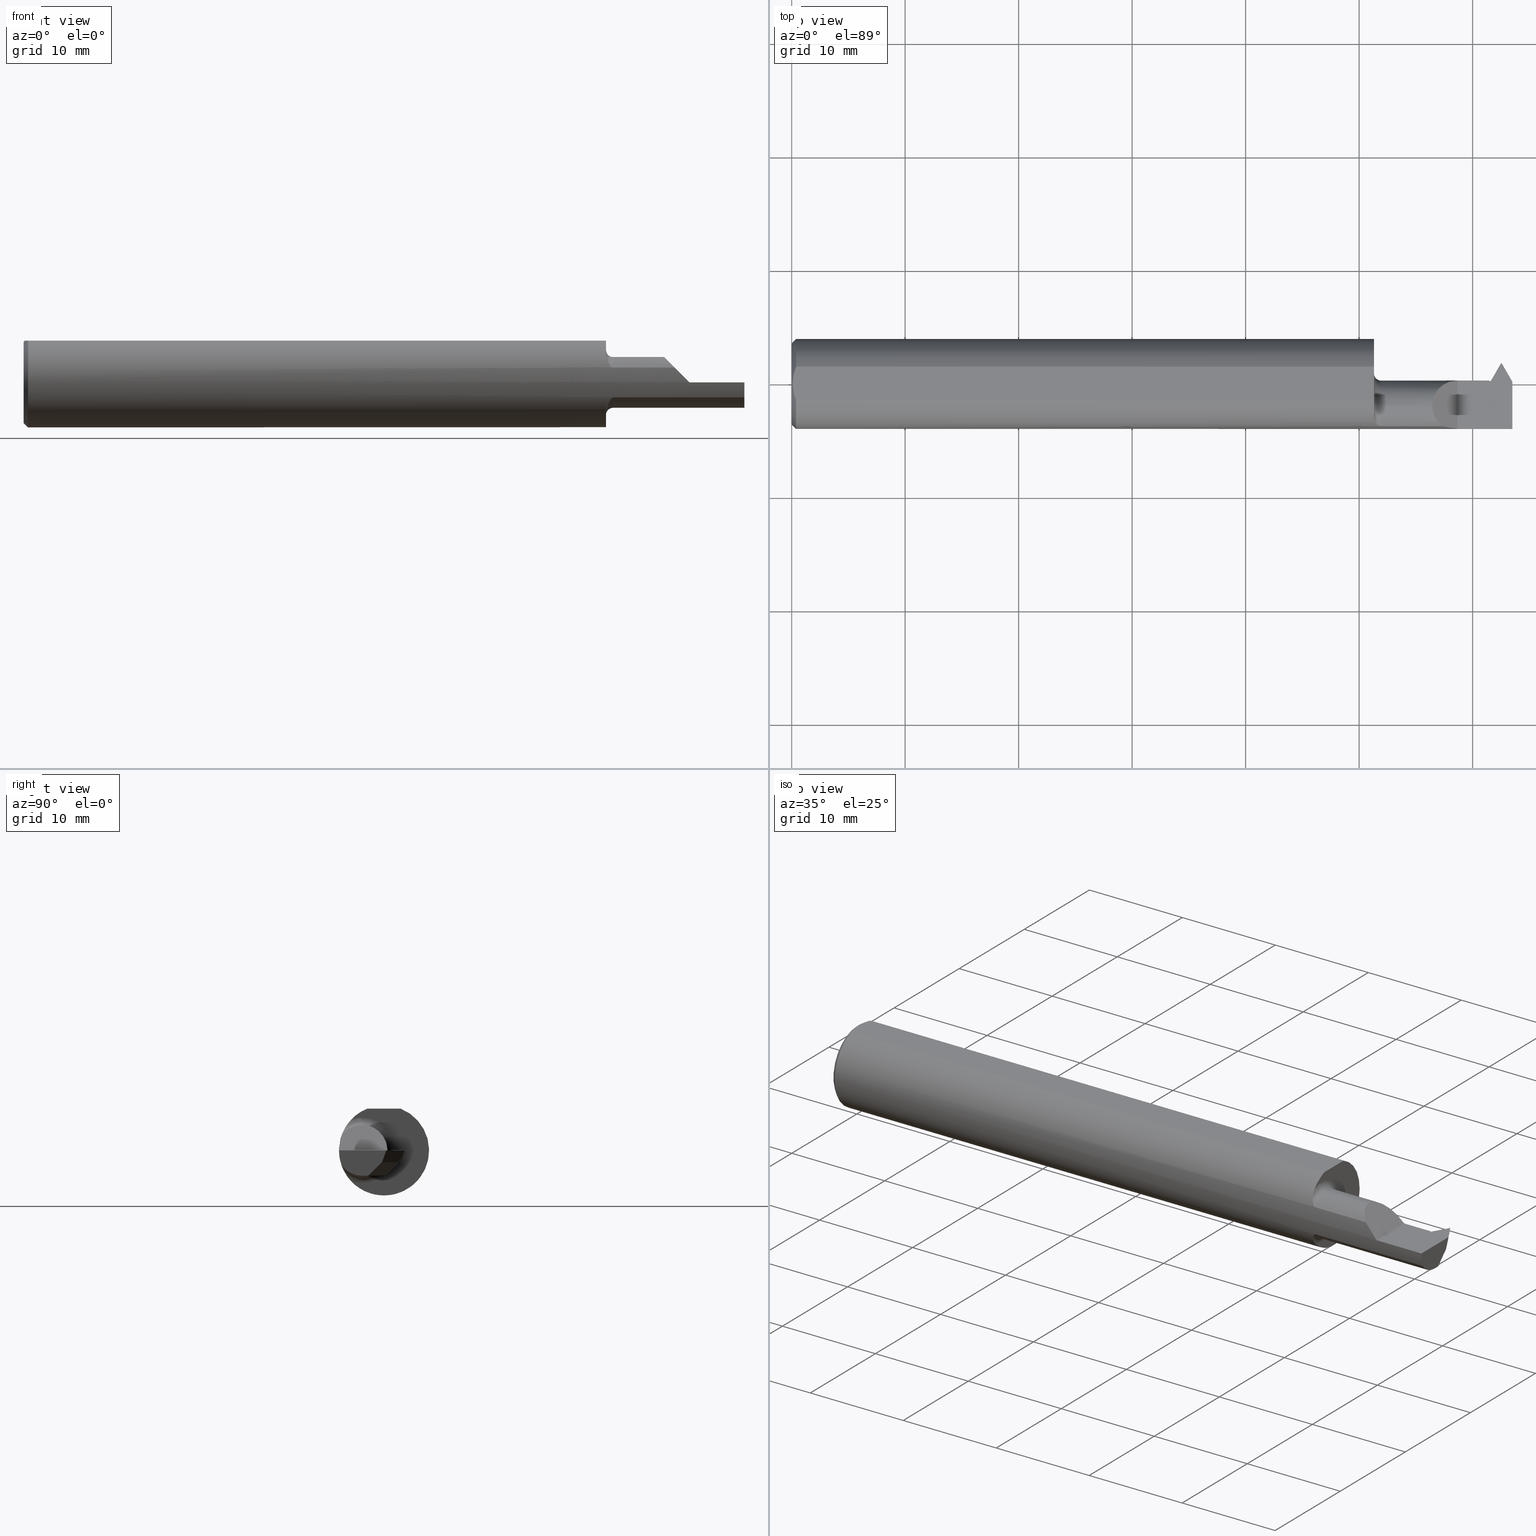
[diagram: canonical four-view strip — front | top / right | iso, engineering-drawing reading convention]
A machine part, canonical four-view strip (front | top / right | iso — engineering-drawing reading convention). The complete STEP part file that produces these views, byte-faithful:
ISO-10303-21;
HEADER;
FILE_DESCRIPTION (( 'STEP AP203' ),
    '1' );
FILE_NAME ('230304-TT230400.STEP',
    '2025-04-22T23:10:18',
    ( '' ),
    ( '' ),
    'SwSTEP 2.0',
    'SolidWorks 2024',
    '' );
FILE_SCHEMA (( 'CONFIG_CONTROL_DESIGN' ));
ENDSEC;

DATA;
#1 = ORIENTED_EDGE ( 'NONE', *, *, #801, .T. ) ;
#2 = CARTESIAN_POINT ( 'NONE',  ( 2.039346387196744992, -0.1465602152313723594, 0.05373951875293322272 ) ) ;
#3 = VECTOR ( 'NONE', #462, 39.37007874015748854 ) ;
#4 = CARTESIAN_POINT ( 'NONE',  ( 0.01499999999999970281, 0.05756040305626781983, 0.1450999999999999512 ) ) ;
#5 = VERTEX_POINT ( 'NONE', #483 ) ;
#6 = CARTESIAN_POINT ( 'NONE',  ( 2.466767208275208567, 0.05098089297201455206, -0.04000000000000001471 ) ) ;
#7 = DIRECTION ( 'NONE',  ( 0.000000000000000000, 2.619314482561616287E-15, -1.000000000000000000 ) ) ;
#8 = EDGE_CURVE ( 'NONE', #135, #227, #471, .T. ) ;
#9 = ORIENTED_EDGE ( 'NONE', *, *, #968, .F. ) ;
#10 = CARTESIAN_POINT ( 'NONE',  ( 2.435706988345931023, -0.07609999999999991771, -0.08799999999999999489 ) ) ;
#11 = DIRECTION ( 'NONE',  ( 0.000000000000000000, 0.000000000000000000, -1.000000000000000000 ) ) ;
#12 = PRODUCT ( '230304-TT230400', '230304-TT230400', '', ( #955 ) ) ;
#13 = ORIENTED_EDGE ( 'NONE', *, *, #881, .T. ) ;
#14 = EDGE_CURVE ( 'NONE', #862, #596, #715, .T. ) ;
#15 = DIRECTION ( 'NONE',  ( -1.000000000000000000, 0.000000000000000000, 0.000000000000000000 ) ) ;
#16 = AXIS2_PLACEMENT_3D ( 'NONE', #613, #911, #219 ) ;
#17 = CIRCLE ( 'NONE', #794, 0.1560999999999999888 ) ;
#18 = VECTOR ( 'NONE', #514, 39.37007874015748143 ) ;
#19 = CARTESIAN_POINT ( 'NONE',  ( 2.039351722746849838, -0.1465615025502167157, -0.05373597933534086935 ) ) ;
#20 = ORIENTED_EDGE ( 'NONE', *, *, #478, .T. ) ;
#21 = CARTESIAN_POINT ( 'NONE',  ( 2.020000000000000018, 0.1749999999999999889, 0.1450999999999999512 ) ) ;
#22 = ORIENTED_EDGE ( 'NONE', *, *, #921, .F. ) ;
#23 = ADVANCED_FACE ( 'NONE', ( #263 ), #562, .T. ) ;
#24 = DIRECTION ( 'NONE',  ( 1.000000000000000000, 0.000000000000000000, 0.000000000000000000 ) ) ;
#25 = EDGE_LOOP ( 'NONE', ( #855, #965, #183, #206 ) ) ;
#26 = LINE ( 'NONE', #332, #848 ) ;
#27 = FACE_OUTER_BOUND ( 'NONE', #313, .T. ) ;
#28 = CC_DESIGN_PERSON_AND_ORGANIZATION_ASSIGNMENT ( #421, #194, ( #411 ) ) ;
#29 = EDGE_CURVE ( 'NONE', #686, #279, #38, .T. ) ;
#30 = FACE_OUTER_BOUND ( 'NONE', #691, .T. ) ;
#31 = VERTEX_POINT ( 'NONE', #785 ) ;
#32 = PLANE ( 'NONE',  #268 ) ;
#33 = EDGE_LOOP ( 'NONE', ( #660, #836, #51, #117, #210, #894, #974, #452 ) ) ;
#34 = VECTOR ( 'NONE', #749, 39.37007874015748143 ) ;
#35 = DIRECTION ( 'NONE',  ( 0.000000000000000000, 0.000000000000000000, -1.000000000000000000 ) ) ;
#36 = AXIS2_PLACEMENT_3D ( 'NONE', #355, #665, #678 ) ;
#37 = ORIENTED_EDGE ( 'NONE', *, *, #407, .F. ) ;
#38 = LINE ( 'NONE', #400, #975 ) ;
#39 = CARTESIAN_POINT ( 'NONE',  ( 2.038224949848629119, -0.1462116317861902048, -0.05468660471535821688 ) ) ;
#40 = ORIENTED_EDGE ( 'NONE', *, *, #968, .T. ) ;
#41 = EDGE_CURVE ( 'NONE', #945, #86, #906, .T. ) ;
#42 = DIRECTION ( 'NONE',  ( 0.4999999999999995559, 0.8660254037844388186, 0.000000000000000000 ) ) ;
#43 = PLANE ( 'NONE',  #940 ) ;
#44 = PERSON_AND_ORGANIZATION_ROLE ( 'design_supplier' ) ;
#45 = ORIENTED_EDGE ( 'NONE', *, *, #401, .T. ) ;
#46 = CARTESIAN_POINT ( 'NONE',  ( 2.462521487620783933, 0.003433247864051121832, -0.1881108554769237440 ) ) ;
#47 = LINE ( 'NONE', #672, #523 ) ;
#48 = VECTOR ( 'NONE', #938, 39.37007874015748143 ) ;
#49 = VECTOR ( 'NONE', #466, 39.37007874015748143 ) ;
#50 = CARTESIAN_POINT ( 'NONE',  ( 2.429292348690410552, 0.001961701296111390339, -0.04062492475437147477 ) ) ;
#51 = ORIENTED_EDGE ( 'NONE', *, *, #407, .T. ) ;
#52 = CARTESIAN_POINT ( 'NONE',  ( 2.020000000000000018, -0.07609999999999990383, 0.000000000000000000 ) ) ;
#53 = APPROVAL_DATE_TIME ( #882, #891 ) ;
#54 = ADVANCED_FACE ( 'NONE', ( #107 ), #406, .F. ) ;
#55 = FACE_OUTER_BOUND ( 'NONE', #59, .T. ) ;
#56 = ORIENTED_EDGE ( 'NONE', *, *, #821, .F. ) ;
#57 = EDGE_CURVE ( 'NONE', #475, #738, #328, .T. ) ;
#58 = DATE_AND_TIME ( #737, #922 ) ;
#59 = EDGE_LOOP ( 'NONE', ( #497, #825, #538, #128, #582 ) ) ;
#60 = DIRECTION ( 'NONE',  ( 1.000000000000000000, -0.000000000000000000, -0.000000000000000000 ) ) ;
#61 = VERTEX_POINT ( 'NONE', #119 ) ;
#62 = CARTESIAN_POINT ( 'NONE',  ( 0.01499999999999970281, 0.000000000000000000, 0.000000000000000000 ) ) ;
#63 = AXIS2_PLACEMENT_3D ( 'NONE', #69, #73, #915 ) ;
#64 = CARTESIAN_POINT ( 'NONE',  ( 2.429320997292269357, 0.001907488210050172503, -0.04072875867441708153 ) ) ;
#65 = ORIENTED_EDGE ( 'NONE', *, *, #131, .T. ) ;
#66 = VECTOR ( 'NONE', #845, 39.37007874015748143 ) ;
#67 = CARTESIAN_POINT ( 'NONE',  ( 2.020000000000000018, 0.000000000000000000, 0.000000000000000000 ) ) ;
#68 = AXIS2_PLACEMENT_3D ( 'NONE', #431, #828, #595 ) ;
#69 = CARTESIAN_POINT ( 'NONE',  ( 2.310000000000000053, 0.1749999999999999889, -3.979970649922725226E-17 ) ) ;
#70 = ORIENTED_EDGE ( 'NONE', *, *, #57, .F. ) ;
#71 = ADVANCED_FACE ( 'NONE', ( #256 ), #317, .F. ) ;
#72 = PLANE ( 'NONE',  #877 ) ;
#73 = DIRECTION ( 'NONE',  ( -1.000000000000000000, 0.000000000000000000, -0.000000000000000000 ) ) ;
#74 = ORIENTED_EDGE ( 'NONE', *, *, #827, .T. ) ;
#75 = DIRECTION ( 'NONE',  ( 0.000000000000000000, 0.000000000000000000, -1.000000000000000000 ) ) ;
#76 = COORDINATED_UNIVERSAL_TIME_OFFSET ( 8, 0, .BEHIND. ) ;
#77 = CARTESIAN_POINT ( 'NONE',  ( 0.000000000000000000, 0.000000000000000000, -0.1411000000000003085 ) ) ;
#78 = EDGE_LOOP ( 'NONE', ( #983, #231, #377, #783, #933 ) ) ;
#79 = CARTESIAN_POINT ( 'NONE',  ( 2.221000000000000085, -0.1472695137976346991, 0.05175809410911754588 ) ) ;
#80 = AXIS2_PLACEMENT_3D ( 'NONE', #52, #353, #580 ) ;
#81 = CARTESIAN_POINT ( 'NONE',  ( 2.457232791724791809, 0.05098089297201453818, -0.04000000000000003553 ) ) ;
#82 = ORIENTED_EDGE ( 'NONE', *, *, #401, .F. ) ;
#83 = CARTESIAN_POINT ( 'NONE',  ( 2.222100000000000186, -0.1048058126387024641, 0.08800000000000002265 ) ) ;
#84 = EDGE_CURVE ( 'NONE', #175, #686, #931, .T. ) ;
#85 = DIRECTION ( 'NONE',  ( -0.1046361662350171057, 0.1812351562282725759, 0.9778573980200545579 ) ) ;
#86 = VERTEX_POINT ( 'NONE', #558 ) ;
#87 = CARTESIAN_POINT ( 'NONE',  ( 2.022196435196732978, -0.1292912702572164563, 0.08767123446451231816 ) ) ;
#88 = CARTESIAN_POINT ( 'NONE',  ( 2.462000000000000188, 0.05923793991493809391, -0.04000000000000004247 ) ) ;
#89 = ORIENTED_EDGE ( 'NONE', *, *, #615, .T. ) ;
#90 = CARTESIAN_POINT ( 'NONE',  ( 2.019999999999999130, -0.1184005327550379794, 0.1019095738247443178 ) ) ;
#91 = CIRCLE ( 'NONE', #264, 0.1560999999999999888 ) ;
#92 = ORGANIZATION ( 'UNSPECIFIED', 'UNSPECIFIED', '' ) ;
#93 = ADVANCED_FACE ( 'NONE', ( #725 ), #110, .F. ) ;
#94 = VECTOR ( 'NONE', #380, 39.37007874015748854 ) ;
#95 = DIRECTION ( 'NONE',  ( 0.4999999999999994449, 0.8660254037844390407, 0.000000000000000000 ) ) ;
#96 = ORIENTED_EDGE ( 'NONE', *, *, #564, .F. ) ;
#97 = CARTESIAN_POINT ( 'NONE',  ( 2.429234505209546313, 0.002486438202738685752, -0.04000000000000004247 ) ) ;
#98 = ADVANCED_FACE ( 'NONE', ( #781 ), #43, .F. ) ;
#99 = CARTESIAN_POINT ( 'NONE',  ( 2.437057709344923939, -2.395127504580135902, 0.3287498326531673731 ) ) ;
#100 = DIRECTION ( 'NONE',  ( -0.5000000000000009992, 0.8660254037844380415, 0.000000000000000000 ) ) ;
#101 = VERTEX_POINT ( 'NONE', #650 ) ;
#102 = CARTESIAN_POINT ( 'NONE',  ( 2.500000000000000000, -0.006579990772679033574, -0.04000000000000004247 ) ) ;
#103 = DIRECTION ( 'NONE',  ( -0.2488382054433659063, -0.6848647850166172946, -0.6848647850166247331 ) ) ;
#104 = FACE_OUTER_BOUND ( 'NONE', #123, .T. ) ;
#105 = ORIENTED_EDGE ( 'NONE', *, *, #447, .T. ) ;
#106 = CARTESIAN_POINT ( 'NONE',  ( 2.222100000000000186, -0.07609999999999990383, 0.08799999999999999489 ) ) ;
#107 = FACE_OUTER_BOUND ( 'NONE', #943, .T. ) ;
#108 = LOCAL_TIME ( 16, 10, 18.00000000000000000, #427 ) ;
#109 = ADVANCED_FACE ( 'NONE', ( #27 ), #635, .F. ) ;
#110 = TOROIDAL_SURFACE ( 'NONE', #393, 0.1130000000000000032, 0.02500000000000000139 ) ;
#111 = LINE ( 'NONE', #168, #48 ) ;
#112 = CIRCLE ( 'NONE', #68, 0.08799999999999999489 ) ;
#113 = ORIENTED_EDGE ( 'NONE', *, *, #852, .F. ) ;
#114 = CARTESIAN_POINT ( 'NONE',  ( 2.412658198884436445, 0.002603915574193138831, -0.03936614882472368182 ) ) ;
#115 = CARTESIAN_POINT ( 'NONE',  ( 2.429269691807145470, 0.002143576999667357041, -0.04027657957365406854 ) ) ;
#116 = PERSON_AND_ORGANIZATION ( #167, #92 ) ;
#117 = ORIENTED_EDGE ( 'NONE', *, *, #477, .F. ) ;
#118 = CARTESIAN_POINT ( 'NONE',  ( 2.540106862800636023, -0.7396572192938193346, -0.9741802139992714604 ) ) ;
#119 = CARTESIAN_POINT ( 'NONE',  ( 2.044999999999999929, -0.07609999999999990383, 0.08799999999999999489 ) ) ;
#120 = APPLICATION_PROTOCOL_DEFINITION ( 'international standard', 'config_control_design', 1994, #707 ) ;
#121 = VERTEX_POINT ( 'NONE', #276 ) ;
#122 = CARTESIAN_POINT ( 'NONE',  ( 2.165000000000000480, 0.1749999999999999889, 0.1450999999999999512 ) ) ;
#123 = EDGE_LOOP ( 'NONE', ( #144, #370, #195, #956, #235, #731 ) ) ;
#124 = EDGE_CURVE ( 'NONE', #686, #258, #47, .T. ) ;
#125 = PERSON_AND_ORGANIZATION ( #167, #92 ) ;
#126 = VECTOR ( 'NONE', #885, 39.37007874015748143 ) ;
#127 = CARTESIAN_POINT ( 'NONE',  ( 2.429263517957858998, 0.002015706958081247939, -0.04052098279880241016 ) ) ;
#128 = ORIENTED_EDGE ( 'NONE', *, *, #900, .T. ) ;
#129 = CARTESIAN_POINT ( 'NONE',  ( 2.020000000000000018, 0.01190000000000008412, -3.979970649922725226E-17 ) ) ;
#131 = EDGE_CURVE ( 'NONE', #724, #321, #808, .T. ) ;
#130 = PLANE ( 'NONE',  #489 ) ;
#132 =( BOUNDED_CURVE ( )  B_SPLINE_CURVE ( 3, ( #114, #719, #398, #644 ),
 .UNSPECIFIED., .F., .F. ) 
 B_SPLINE_CURVE_WITH_KNOTS ( ( 4, 4 ),
 ( 1.107004480862656681, 1.570796326794896780 ),
 .UNSPECIFIED. ) 
 CURVE ( )  GEOMETRIC_REPRESENTATION_ITEM ( )  RATIONAL_B_SPLINE_CURVE ( ( 1.000000000000000000, 0.9821549450057673880, 0.9821549450057673880, 1.000000000000000000 ) ) 
 REPRESENTATION_ITEM ( '' )  );
#133 = DIRECTION ( 'NONE',  ( 0.000000000000000000, 0.000000000000000000, 1.000000000000000000 ) ) ;
#134 = ORIENTED_EDGE ( 'NONE', *, *, #583, .T. ) ;
#135 = VERTEX_POINT ( 'NONE', #509 ) ;
#136 = COORDINATED_UNIVERSAL_TIME_OFFSET ( 8, 0, .BEHIND. ) ;
#137 = MANIFOLD_SOLID_BREP ( 'RH Unsuppress to show', #957 ) ;
#138 = PLANE ( 'NONE',  #390 ) ;
#139 = ORIENTED_EDGE ( 'NONE', *, *, #477, .T. ) ;
#140 = LINE ( 'NONE', #441, #34 ) ;
#141 = EDGE_CURVE ( 'NONE', #135, #819, #502, .T. ) ;
#142 = VECTOR ( 'NONE', #605, 39.37007874015748143 ) ;
#143 = LINE ( 'NONE', #661, #444 ) ;
#144 = ORIENTED_EDGE ( 'NONE', *, *, #433, .T. ) ;
#145 = VECTOR ( 'NONE', #259, 39.37007874015748854 ) ;
#146 = CARTESIAN_POINT ( 'NONE',  ( 2.310000000000000053, -0.1560999679692471886, 9.999999999973052634E-05 ) ) ;
#147 = VECTOR ( 'NONE', #230, 39.37007874015748143 ) ;
#148 = FACE_OUTER_BOUND ( 'NONE', #872, .T. ) ;
#149 = ORIENTED_EDGE ( 'NONE', *, *, #213, .T. ) ;
#150 = LINE ( 'NONE', #302, #252 ) ;
#151 = CARTESIAN_POINT ( 'NONE',  ( 2.044999999999999929, -0.07609999999999990383, 0.000000000000000000 ) ) ;
#152 = ORIENTED_EDGE ( 'NONE', *, *, #271, .T. ) ;
#153 = FACE_OUTER_BOUND ( 'NONE', #308, .T. ) ;
#154 = FACE_OUTER_BOUND ( 'NONE', #606, .T. ) ;
#155 = ORIENTED_EDGE ( 'NONE', *, *, #242, .T. ) ;
#156 = CARTESIAN_POINT ( 'NONE',  ( 2.038188893766193832, -0.1461994758887454893, 0.05471906550179909956 ) ) ;
#157 = AXIS2_PLACEMENT_3D ( 'NONE', #628, #184, #339 ) ;
#158 = EDGE_CURVE ( 'NONE', #819, #515, #667, .T. ) ;
#159 = LINE ( 'NONE', #369, #705 ) ;
#160 = ORIENTED_EDGE ( 'NONE', *, *, #511, .T. ) ;
#161 = LINE ( 'NONE', #322, #3 ) ;
#162 = CARTESIAN_POINT ( 'NONE',  ( 2.292364034161542108, -0.1560886701028428303, 0.01773596583845823624 ) ) ;
#163 = CARTESIAN_POINT ( 'NONE',  ( 0.01158831187866349310, 0.04830813087846574927, 0.1450999999999999235 ) ) ;
#164 = ORIENTED_EDGE ( 'NONE', *, *, #625, .F. ) ;
#165 = EDGE_CURVE ( 'NONE', #227, #330, #296, .T. ) ;
#166 = CARTESIAN_POINT ( 'NONE',  ( 2.029076693190785097, -0.1408182624999438637, 0.06756946090661444804 ) ) ;
#167 = PERSON ( 'UNSPECIFIED', 'UNSPECIFIED', 'UNSPECIFIED', ('UNSPECIFIED'), ('UNSPECIFIED'), ('UNSPECIFIED') ) ;
#168 = CARTESIAN_POINT ( 'NONE',  ( 2.500000000000000000, -0.05756040305626781983, 0.1450999999999999512 ) ) ;
#169 = EDGE_CURVE ( 'NONE', #404, #279, #221, .T. ) ;
#170 = VERTEX_POINT ( 'NONE', #693 ) ;
#171 = CARTESIAN_POINT ( 'NONE',  ( 2.419954283310243426, 0.01190000000000008412, 0.000000000000000000 ) ) ;
#172 = DIRECTION ( 'NONE',  ( 1.000000000000000000, 0.000000000000000000, 0.000000000000000000 ) ) ;
#173 = AXIS2_PLACEMENT_3D ( 'NONE', #379, #453, #15 ) ;
#174 = LINE ( 'NONE', #467, #658 ) ;
#175 = VERTEX_POINT ( 'NONE', #306 ) ;
#176 = DIRECTION ( 'NONE',  ( 0.9945105694338490787, 0.01906842673932168317, 0.1028840239592550276 ) ) ;
#177 = DIRECTION ( 'NONE',  ( 0.1822355254921478318, 0.000000000000000000, 0.9832549075639543945 ) ) ;
#178 = FACE_OUTER_BOUND ( 'NONE', #926, .T. ) ;
#179 = ORIENTED_EDGE ( 'NONE', *, *, #286, .F. ) ;
#180 = EDGE_LOOP ( 'NONE', ( #662, #13, #56, #465 ) ) ;
#181 = ADVANCED_FACE ( 'NONE', ( #617 ), #318, .F. ) ;
#182 = DIRECTION ( 'NONE',  ( 0.000000000000000000, 0.000000000000000000, 1.000000000000000000 ) ) ;
#183 = ORIENTED_EDGE ( 'NONE', *, *, #522, .T. ) ;
#184 = DIRECTION ( 'NONE',  ( 1.000000000000000000, 0.000000000000000000, 0.000000000000000000 ) ) ;
#185 = DIRECTION ( 'NONE',  ( 0.1029027336291402361, 0.000000000000000000, -0.9946914232120684929 ) ) ;
#186 = AXIS2_PLACEMENT_3D ( 'NONE', #641, #325, #822 ) ;
#187 = EDGE_CURVE ( 'NONE', #170, #817, #505, .T. ) ;
#188 = VECTOR ( 'NONE', #42, 39.37007874015748854 ) ;
#189 = CARTESIAN_POINT ( 'NONE',  ( 2.022184834623027783, -0.1292572780652835041, -0.08772123080144229867 ) ) ;
#190 = TOROIDAL_SURFACE ( 'NONE', #720, 0.1130000000000000032, 0.02500000000000000139 ) ;
#191 = ORIENTED_EDGE ( 'NONE', *, *, #934, .T. ) ;
#192 = DIRECTION ( 'NONE',  ( 0.000000000000000000, 0.000000000000000000, -1.000000000000000000 ) ) ;
#193 = DIRECTION ( 'NONE',  ( -0.01917015588245135280, 0.9998162356770579073, -1.665519198313370656E-16 ) ) ;
#194 = PERSON_AND_ORGANIZATION_ROLE ( 'creator' ) ;
#195 = ORIENTED_EDGE ( 'NONE', *, *, #402, .F. ) ;
#196 = DIRECTION ( 'NONE',  ( 0.000000000000000000, 0.000000000000000000, 1.000000000000000000 ) ) ;
#197 =( CONVERSION_BASED_UNIT ( 'INCH', #287 ) LENGTH_UNIT ( ) NAMED_UNIT ( #420 ) );
#198 = VERTEX_POINT ( 'NONE', #592 ) ;
#199 = ADVANCED_FACE ( 'NONE', ( #663 ), #72, .F. ) ;
#200 = ADVANCED_FACE ( 'NONE', ( #368 ), #503, .T. ) ;
#201 = DIRECTION ( 'NONE',  ( 0.1792828666815822203, 0.1792828666815822203, 0.9673237862416430577 ) ) ;
#202 = EDGE_LOOP ( 'NONE', ( #160, #883, #666, #82 ) ) ;
#203 = DIRECTION ( 'NONE',  ( 4.299875284949262862E-15, 0.7071067811865435759, 0.7071067811865513475 ) ) ;
#204 = VECTOR ( 'NONE', #540, 39.37007874015748143 ) ;
#205 = CARTESIAN_POINT ( 'NONE',  ( 0.01499999999999970281, 0.000000000000000000, -0.1560999999999999888 ) ) ;
#206 = ORIENTED_EDGE ( 'NONE', *, *, #272, .T. ) ;
#207 = CYLINDRICAL_SURFACE ( 'NONE', #430, 0.08799999999999999489 ) ;
#208 = APPLICATION_PROTOCOL_DEFINITION ( 'international standard', 'config_control_design', 1994, #809 ) ;
#209 = DIRECTION ( 'NONE',  ( 0.4999999999999994449, 0.8660254037844389297, 0.000000000000000000 ) ) ;
#210 = ORIENTED_EDGE ( 'NONE', *, *, #551, .F. ) ;
#211 = PRODUCT_DEFINITION ( 'UNKNOWN', '', #411, #656 ) ;
#212 = DIRECTION ( 'NONE',  ( -1.000000000000000000, -0.000000000000000000, -0.000000000000000000 ) ) ;
#213 = EDGE_CURVE ( 'NONE', #440, #819, #861, .T. ) ;
#214 = DATE_TIME_ROLE ( 'classification_date' ) ;
#215 = CARTESIAN_POINT ( 'NONE',  ( 0.01499999999999970281, 0.000000000000000000, 0.000000000000000000 ) ) ;
#216 = ORIENTED_EDGE ( 'NONE', *, *, #131, .F. ) ;
#217 = CARTESIAN_POINT ( 'NONE',  ( 2.424954283310243763, 0.009900000000000085815, 0.000000000000000000 ) ) ;
#218 = CIRCLE ( 'NONE', #223, 0.02500000000000000486 ) ;
#219 = DIRECTION ( 'NONE',  ( 0.000000000000000000, 0.000000000000000000, -1.000000000000000000 ) ) ;
#220 = ORIENTED_EDGE ( 'NONE', *, *, #418, .F. ) ;
#221 = LINE ( 'NONE', #841, #94 ) ;
#222 = CARTESIAN_POINT ( 'NONE',  ( 2.041958798426077415, -0.1470959791559693364, 0.05225519572836449800 ) ) ;
#223 = AXIS2_PLACEMENT_3D ( 'NONE', #734, #578, #439 ) ;
#224 = B_SPLINE_CURVE_WITH_KNOTS ( 'NONE', 3,
 ( #616, #373, #920, #607, #687, #766 ),
 .UNSPECIFIED., .F., .F.,
 ( 4, 2, 4 ),
 ( 0.004640589759741725780, 0.005379751224090827816, 0.006118912688439928985 ),
 .UNSPECIFIED. ) ;
#225 = ADVANCED_FACE ( 'NONE', ( #602 ), #130, .F. ) ;
#226 = CARTESIAN_POINT ( 'NONE',  ( 2.020000000000000018, 0.05756040305626781289, 0.1450999999999999512 ) ) ;
#227 = VERTEX_POINT ( 'NONE', #146 ) ;
#228 = LINE ( 'NONE', #487, #282 ) ;
#229 =( BOUNDED_CURVE ( )  B_SPLINE_CURVE ( 3, ( #930, #935, #648, #714 ),
 .UNSPECIFIED., .F., .F. ) 
 B_SPLINE_CURVE_WITH_KNOTS ( ( 4, 4 ),
 ( 2.833382725121767365, 3.065497789749019653 ),
 .UNSPECIFIED. ) 
 CURVE ( )  GEOMETRIC_REPRESENTATION_ITEM ( )  RATIONAL_B_SPLINE_CURVE ( ( 1.000000000000000000, 0.9955152536748560488, 0.9955152536748560488, 1.000000000000000000 ) ) 
 REPRESENTATION_ITEM ( '' )  );
#230 = DIRECTION ( 'NONE',  ( 1.000000000000000000, -0.000000000000000000, -0.000000000000000000 ) ) ;
#231 = ORIENTED_EDGE ( 'NONE', *, *, #232, .T. ) ;
#232 = EDGE_CURVE ( 'NONE', #967, #799, #499, .T. ) ;
#233 = FACE_OUTER_BOUND ( 'NONE', #78, .T. ) ;
#234 = CARTESIAN_POINT ( 'NONE',  ( 0.008823987512428013366, 0.03887788046871690911, 0.1450999999999999512 ) ) ;
#235 = ORIENTED_EDGE ( 'NONE', *, *, #418, .T. ) ;
#236 = CC_DESIGN_SECURITY_CLASSIFICATION ( #973, ( #411 ) ) ;
#237 = LINE ( 'NONE', #21, #204 ) ;
#238 = VECTOR ( 'NONE', #403, 39.37007874015748143 ) ;
#239 = ADVANCED_FACE ( 'NONE', ( #895 ), #207, .T. ) ;
#240 = LINE ( 'NONE', #532, #347 ) ;
#241 = ORIENTED_EDGE ( 'NONE', *, *, #821, .T. ) ;
#242 = EDGE_CURVE ( 'NONE', #533, #566, #847, .T. ) ;
#243 = DIRECTION ( 'NONE',  ( -1.000000000000000000, -0.000000000000000000, -0.000000000000000000 ) ) ;
#244 = VERTEX_POINT ( 'NONE', #826 ) ;
#245 = LINE ( 'NONE', #102, #145 ) ;
#246 = CARTESIAN_POINT ( 'NONE',  ( 2.429320997292269357, 0.001907488210050172503, -0.04072875867441708153 ) ) ;
#247 = CARTESIAN_POINT ( 'NONE',  ( 2.258341905890882462, -0.1472695137976346991, 0.05175809410911749731 ) ) ;
#248 = CARTESIAN_POINT ( 'NONE',  ( 0.000000000000000000, 1.819825143532968629E-17, 0.1411000000000003085 ) ) ;
#249 = ORIENTED_EDGE ( 'NONE', *, *, #688, .T. ) ;
#250 = CARTESIAN_POINT ( 'NONE',  ( 2.310000000000000053, 0.01189994318180000350, 9.999999999973052634E-05 ) ) ;
#251 = CARTESIAN_POINT ( 'NONE',  ( 2.455049885531356946, 0.04497299085660366041, -0.04600790211541092717 ) ) ;
#252 = VECTOR ( 'NONE', #914, 39.37007874015748143 ) ;
#253 = LINE ( 'NONE', #408, #350 ) ;
#254 = ORIENTED_EDGE ( 'NONE', *, *, #801, .F. ) ;
#255 = LINE ( 'NONE', #634, #301 ) ;
#256 = FACE_OUTER_BOUND ( 'NONE', #180, .T. ) ;
#257 = LINE ( 'NONE', #944, #779 ) ;
#258 = VERTEX_POINT ( 'NONE', #673 ) ;
#259 = DIRECTION ( 'NONE',  ( 0.000000000000000000, -0.7071067811865473507, -0.7071067811865475727 ) ) ;
#260 = CARTESIAN_POINT ( 'NONE',  ( 2.035113571315068981, -0.1450112207500813821, -0.05782715517876001188 ) ) ;
#261 = EDGE_LOOP ( 'NONE', ( #508, #134, #839, #96, #304 ) ) ;
#262 = CARTESIAN_POINT ( 'NONE',  ( 2.222100000000000186, -0.02459722810174531579, 0.08800000000000000877 ) ) ;
#263 = FACE_OUTER_BOUND ( 'NONE', #33, .T. ) ;
#264 = AXIS2_PLACEMENT_3D ( 'NONE', #215, #60, #346 ) ;
#265 = LOCAL_TIME ( 16, 10, 18.00000000000000000, #277 ) ;
#266 = AXIS2_PLACEMENT_3D ( 'NONE', #721, #479, #426 ) ;
#267 = DIRECTION ( 'NONE',  ( 0.5000000000000009992, -0.8660254037844380415, 0.000000000000000000 ) ) ;
#268 = AXIS2_PLACEMENT_3D ( 'NONE', #470, #176, #710 ) ;
#269 = EDGE_CURVE ( 'NONE', #738, #404, #140, .T. ) ;
#270 = DIRECTION ( 'NONE',  ( -1.000000000000000000, -2.762515462060876830E-15, -2.762515462060907201E-15 ) ) ;
#271 = EDGE_CURVE ( 'NONE', #740, #850, #17, .T. ) ;
#272 = EDGE_CURVE ( 'NONE', #449, #292, #290, .T. ) ;
#273 = EDGE_LOOP ( 'NONE', ( #746, #20, #889, #579 ) ) ;
#274 = DIRECTION ( 'NONE',  ( 0.8515237283461049023, -0.4916274537819766977, 0.1822355254921478596 ) ) ;
#275 = ORIENTED_EDGE ( 'NONE', *, *, #732, .T. ) ;
#276 = CARTESIAN_POINT ( 'NONE',  ( 2.044999999999999929, -0.1472695137976346991, 0.05175809410911754588 ) ) ;
#277 = COORDINATED_UNIVERSAL_TIME_OFFSET ( 8, 0, .BEHIND. ) ;
#278 = DIRECTION ( 'NONE',  ( 0.000000000000000000, 0.000000000000000000, 1.000000000000000000 ) ) ;
#279 = VERTEX_POINT ( 'NONE', #692 ) ;
#280 = DIRECTION ( 'NONE',  ( -1.000000000000000000, -0.000000000000000000, -0.000000000000000000 ) ) ;
#281 = AXIS2_PLACEMENT_3D ( 'NONE', #798, #133, #886 ) ;
#282 = VECTOR ( 'NONE', #476, 39.37007874015748143 ) ;
#283 = VECTOR ( 'NONE', #384, 39.37007874015748854 ) ;
#284 = CARTESIAN_POINT ( 'NONE',  ( 2.044999999999999929, -0.07609999999999990383, 0.000000000000000000 ) ) ;
#285 = ORIENTED_EDGE ( 'NONE', *, *, #631, .F. ) ;
#286 = EDGE_CURVE ( 'NONE', #101, #330, #333, .T. ) ;
#287 = LENGTH_MEASURE_WITH_UNIT ( LENGTH_MEASURE( 0.02539999999999999897 ), #969 );
#288 = LINE ( 'NONE', #901, #394 ) ;
#289 = ORIENTED_EDGE ( 'NONE', *, *, #511, .F. ) ;
#290 = LINE ( 'NONE', #831, #49 ) ;
#291 = CARTESIAN_POINT ( 'NONE',  ( 2.463133816532963927, 0.06098089297201435971, -0.03000000000000008910 ) ) ;
#292 = VERTEX_POINT ( 'NONE', #315 ) ;
#293 = DIRECTION ( 'NONE',  ( -0.000000000000000000, 1.665508886226709250E-16, 1.000000000000000000 ) ) ;
#294 = EDGE_CURVE ( 'NONE', #440, #227, #624, .T. ) ;
#295 = SHAPE_DEFINITION_REPRESENTATION ( #572, #638 ) ;
#296 =( BOUNDED_CURVE ( )  B_SPLINE_CURVE ( 3, ( #913, #162, #324, #247 ),
 .UNSPECIFIED., .F., .F. ) 
 B_SPLINE_CURVE_WITH_KNOTS ( ( 4, 4 ),
 ( 4.713029595418895212, 5.050356325447889816 ),
 .UNSPECIFIED. ) 
 CURVE ( )  GEOMETRIC_REPRESENTATION_ITEM ( )  RATIONAL_B_SPLINE_CURVE ( ( 1.000000000000000000, 0.9905400143130563828, 0.9905400143130563828, 1.000000000000000000 ) ) 
 REPRESENTATION_ITEM ( '' )  );
#297 = CARTESIAN_POINT ( 'NONE',  ( 2.020000000000000018, -0.07609999999999990383, -0.1130000000000000032 ) ) ;
#298 = ADVANCED_FACE ( 'NONE', ( #233 ), #604, .T. ) ;
#299 = ORIENTED_EDGE ( 'NONE', *, *, #631, .T. ) ;
#300 = B_SPLINE_CURVE_WITH_KNOTS ( 'NONE', 3,
 ( #528, #474, #626, #189, #777, #928, #545, #860, #260, #39, #19, #480, #484, #772 ),
 .UNSPECIFIED., .F., .F.,
 ( 4, 2, 2, 2, 2, 2, 4 ),
 ( 0.000000000000000000, 0.0004571115948190633701, 0.0009142231896381267401, 0.001371334784457190056, 0.001599890581866726972, 0.001714168480571488925, 0.001828446379276250661 ),
 .UNSPECIFIED. ) ;
#301 = VECTOR ( 'NONE', #553, 39.37007874015748143 ) ;
#302 = CARTESIAN_POINT ( 'NONE',  ( 2.310000000000000497, 0.07189999999999975577, -3.979970649922725226E-17 ) ) ;
#303 = CARTESIAN_POINT ( 'NONE',  ( 2.429234505209546313, -0.07609999999999990383, 0.000000000000000000 ) ) ;
#304 = ORIENTED_EDGE ( 'NONE', *, *, #364, .F. ) ;
#305 = CARTESIAN_POINT ( 'NONE',  ( 2.033431866506538288, -0.1440183431193643449, 0.06027419116281393374 ) ) ;
#306 = CARTESIAN_POINT ( 'NONE',  ( 2.500000000000000000, -0.07609999999999991771, -0.08799999999999999489 ) ) ;
#307 = CARTESIAN_POINT ( 'NONE',  ( 2.310000000000000053, 0.01190000000000008412, -3.979970649922725226E-17 ) ) ;
#308 = EDGE_LOOP ( 'NONE', ( #844, #367, #416, #435, #481 ) ) ;
#309 = DIRECTION ( 'NONE',  ( -0.5000000000000009992, 0.8660254037844379305, -1.153898404560843369E-16 ) ) ;
#310 = EDGE_CURVE ( 'NONE', #121, #330, #697, .T. ) ;
#311 = APPROVAL_STATUS ( 'not_yet_approved' ) ;
#312 = CARTESIAN_POINT ( 'NONE',  ( 0.005030132703184393185, 0.01970541148932063516, 0.1450999999999999512 ) ) ;
#313 = EDGE_LOOP ( 'NONE', ( #585, #647, #642 ) ) ;
#314 = DIRECTION ( 'NONE',  ( 1.000000000000000000, 0.000000000000000000, 0.000000000000000000 ) ) ;
#315 = CARTESIAN_POINT ( 'NONE',  ( 2.424954283310243763, 0.009900000000000085815, 0.000000000000000000 ) ) ;
#316 = ADVANCED_FACE ( 'NONE', ( #153 ), #544, .F. ) ;
#317 = TOROIDAL_SURFACE ( 'NONE', #457, 0.1130000000000000032, 0.02500000000000000139 ) ;
#318 = PLANE ( 'NONE',  #657 ) ;
#319 = AXIS2_PLACEMENT_3D ( 'NONE', #303, #689, #7 ) ;
#320 = CARTESIAN_POINT ( 'NONE',  ( 2.310000000000000053, 0.1749999999999999889, -3.979970649922725226E-17 ) ) ;
#321 = VERTEX_POINT ( 'NONE', #6 ) ;
#322 = CARTESIAN_POINT ( 'NONE',  ( 2.455721183177880018, 0.08138230818110959996, -0.009598584790904597305 ) ) ;
#323 = DIRECTION ( 'NONE',  ( 0.5000000000000012212, -0.8660254037844379305, 0.000000000000000000 ) ) ;
#324 = CARTESIAN_POINT ( 'NONE',  ( 2.274980218814131927, -0.1531170741235404198, 0.03511978118586850384 ) ) ;
#325 = DIRECTION ( 'NONE',  ( 1.000000000000000000, 0.000000000000000000, 0.000000000000000000 ) ) ;
#326 = ORIENTED_EDGE ( 'NONE', *, *, #169, .F. ) ;
#327 = FACE_OUTER_BOUND ( 'NONE', #929, .T. ) ;
#328 = LINE ( 'NONE', #251, #750 ) ;
#329 = CARTESIAN_POINT ( 'NONE',  ( 2.020000000000000018, -0.07609999999999990383, 0.08799999999999999489 ) ) ;
#330 = VERTEX_POINT ( 'NONE', #927 ) ;
#331 = EDGE_CURVE ( 'NONE', #121, #429, #917, .T. ) ;
#332 = CARTESIAN_POINT ( 'NONE',  ( 2.419954283310243426, 0.009900000000000085815, 0.000000000000000000 ) ) ;
#333 =( BOUNDED_CURVE ( )  B_SPLINE_CURVE ( 3, ( #856, #83, #383, #840 ),
 .UNSPECIFIED., .F., .F. ) 
 B_SPLINE_CURVE_WITH_KNOTS ( ( 4, 4 ),
 ( 0.000000000000000000, 0.9420143062005867929 ),
 .UNSPECIFIED. ) 
 CURVE ( )  GEOMETRIC_REPRESENTATION_ITEM ( )  RATIONAL_B_SPLINE_CURVE ( ( 1.000000000000000000, 0.9274078068410991360, 0.9274078068410991360, 1.000000000000000000 ) ) 
 REPRESENTATION_ITEM ( '' )  );
#334 = ORIENTED_EDGE ( 'NONE', *, *, #547, .F. ) ;
#335 = CONICAL_SURFACE ( 'NONE', #751, 0.1560999999999999888, 0.7853981633974471688 ) ;
#336 = CARTESIAN_POINT ( 'NONE',  ( 2.460750000000000437, 0.07190000000000001945, -3.979970649922725226E-17 ) ) ;
#337 = CC_DESIGN_PERSON_AND_ORGANIZATION_ASSIGNMENT ( #496, #960, ( #973 ) ) ;
#338 = ORIENTED_EDGE ( 'NONE', *, *, #643, .T. ) ;
#339 = DIRECTION ( 'NONE',  ( 0.000000000000000000, 0.000000000000000000, -1.000000000000000000 ) ) ;
#340 = DIRECTION ( 'NONE',  ( -1.000000000000000000, -0.000000000000000000, -0.000000000000000000 ) ) ;
#341 = EDGE_LOOP ( 'NONE', ( #683, #577, #289, #446, #389 ) ) ;
#342 = LINE ( 'NONE', #97, #188 ) ;
#343 = ORIENTED_EDGE ( 'NONE', *, *, #478, .F. ) ;
#344 = EDGE_CURVE ( 'NONE', #686, #610, #391, .T. ) ;
#345 = EDGE_LOOP ( 'NONE', ( #412, #556, #299, #601 ) ) ;
#346 = DIRECTION ( 'NONE',  ( 0.000000000000000000, 0.000000000000000000, -1.000000000000000000 ) ) ;
#347 = VECTOR ( 'NONE', #460, 39.37007874015748143 ) ;
#348 = AXIS2_PLACEMENT_3D ( 'NONE', #62, #520, #362 ) ;
#349 = CALENDAR_DATE ( 2025, 22, 4 ) ;
#350 = VECTOR ( 'NONE', #559, 39.37007874015748143 ) ;
#351 = CARTESIAN_POINT ( 'NONE',  ( 2.399999999999999911, 0.002980892972015064535, -0.08800000000000002265 ) ) ;
#352 = UNCERTAINTY_MEASURE_WITH_UNIT (LENGTH_MEASURE( 1.000000000000000082E-05 ), #197, 'distance_accuracy_value', 'NONE');
#353 = DIRECTION ( 'NONE',  ( -1.000000000000000000, -0.000000000000000000, -0.000000000000000000 ) ) ;
#354 = DATE_TIME_ROLE ( 'creation_date' ) ;
#355 = CARTESIAN_POINT ( 'NONE',  ( 2.020000000000000018, -0.07609999999999990383, 0.000000000000000000 ) ) ;
#356 = EDGE_LOOP ( 'NONE', ( #422, #916, #105, #468, #343, #149, #769, #589, #699, #867, #912, #1, #139 ) ) ;
#357 = DIRECTION ( 'NONE',  ( 0.7071067811865483499, 8.659560562354922997E-17, 0.7071067811865466846 ) ) ;
#358 = ORIENTED_EDGE ( 'NONE', *, *, #14, .F. ) ;
#359 = EDGE_CURVE ( 'NONE', #813, #724, #611, .T. ) ;
#360 = PLANE ( 'NONE',  #571 ) ;
#361 = ORIENTED_EDGE ( 'NONE', *, *, #29, .F. ) ;
#362 = DIRECTION ( 'NONE',  ( 0.000000000000000000, 0.000000000000000000, -1.000000000000000000 ) ) ;
#363 = VECTOR ( 'NONE', #323, 39.37007874015748143 ) ;
#364 = EDGE_CURVE ( 'NONE', #799, #902, #224, .T. ) ;
#365 = CIRCLE ( 'NONE', #976, 0.02500000000000000486 ) ;
#366 = CARTESIAN_POINT ( 'NONE',  ( 2.020000000000000018, 0.000000000000000000, 0.000000000000000000 ) ) ;
#367 = ORIENTED_EDGE ( 'NONE', *, *, #948, .F. ) ;
#368 = FACE_OUTER_BOUND ( 'NONE', #735, .T. ) ;
#369 = CARTESIAN_POINT ( 'NONE',  ( 2.424954283310243763, 0.009900000000000085815, 0.000000000000000000 ) ) ;
#370 = ORIENTED_EDGE ( 'NONE', *, *, #486, .F. ) ;
#371 = CARTESIAN_POINT ( 'NONE',  ( 2.429234505209546313, 0.002069504980668138063, -0.04041693322207059319 ) ) ;
#372 = ORIENTED_EDGE ( 'NONE', *, *, #8, .T. ) ;
#373 = CARTESIAN_POINT ( 'NONE',  ( 0.003999999999999590689, -0.009851916903761231276, 0.1450999999999999235 ) ) ;
#374 = EDGE_CURVE ( 'NONE', #850, #382, #237, .T. ) ;
#375 = DATE_AND_TIME ( #619, #674 ) ;
#376 = DIRECTION ( 'NONE',  ( 0.000000000000000000, 0.000000000000000000, -1.000000000000000000 ) ) ;
#377 = ORIENTED_EDGE ( 'NONE', *, *, #773, .F. ) ;
#378 = VECTOR ( 'NONE', #314, 39.37007874015748143 ) ;
#379 = CARTESIAN_POINT ( 'NONE',  ( 0.000000000000000000, 0.1749999999999999889, 0.1450999999999999512 ) ) ;
#380 = DIRECTION ( 'NONE',  ( -0.4999999999999995559, -0.8660254037844388186, 1.431454160717134969E-16 ) ) ;
#381 = CARTESIAN_POINT ( 'NONE',  ( 0.003999999999999592423, 0.009855731042683129120, 0.1450999999999999790 ) ) ;
#382 = VERTEX_POINT ( 'NONE', #851 ) ;
#383 = CARTESIAN_POINT ( 'NONE',  ( 2.235126238519718367, -0.1303858984336271343, 0.07497376148028192522 ) ) ;
#384 = DIRECTION ( 'NONE',  ( -0.1046361662350171057, 0.1812351562282725759, 0.9778573980200545579 ) ) ;
#385 = EDGE_CURVE ( 'NONE', #321, #704, #161, .T. ) ;
#386 = ORIENTED_EDGE ( 'NONE', *, *, #29, .T. ) ;
#387 = DIRECTION ( 'NONE',  ( 1.000000000000000000, -0.000000000000000000, -0.000000000000000000 ) ) ;
#388 = PLANE ( 'NONE',  #909 ) ;
#389 = ORIENTED_EDGE ( 'NONE', *, *, #402, .T. ) ;
#390 = AXIS2_PLACEMENT_3D ( 'NONE', #498, #274, #209 ) ;
#391 =( BOUNDED_CURVE ( )  B_SPLINE_CURVE ( 3, ( #10, #761, #458, #450 ),
 .UNSPECIFIED., .F., .T. ) 
 B_SPLINE_CURVE_WITH_KNOTS ( ( 4, 4 ),
 ( 3.324852225049199639, 4.034155524605875343 ),
 .UNSPECIFIED. ) 
 CURVE ( )  GEOMETRIC_REPRESENTATION_ITEM ( )  RATIONAL_B_SPLINE_CURVE ( ( 1.000000000000000000, 0.9585116767379819880, 0.9585116767379819880, 1.000000000000000000 ) ) 
 REPRESENTATION_ITEM ( '' )  );
#392 = CARTESIAN_POINT ( 'NONE',  ( 2.020000000000000018, -0.1142537450722733300, 0.1063639588251582974 ) ) ;
#393 = AXIS2_PLACEMENT_3D ( 'NONE', #952, #172, #472 ) ;
#394 = VECTOR ( 'NONE', #517, 39.37007874015748143 ) ;
#395 = LINE ( 'NONE', #787, #238 ) ;
#396 = ORIENTED_EDGE ( 'NONE', *, *, #187, .T. ) ;
#397 = CC_DESIGN_DATE_AND_TIME_ASSIGNMENT ( #492, #354, ( #211 ) ) ;
#398 = CARTESIAN_POINT ( 'NONE',  ( 2.417409961610213376, 0.01190000000000008586, -0.01372793142950701900 ) ) ;
#399 =( BOUNDED_CURVE ( )  B_SPLINE_CURVE ( 3, ( #64, #50, #127, #961 ),
 .UNSPECIFIED., .F., .F. ) 
 B_SPLINE_CURVE_WITH_KNOTS ( ( 4, 4 ),
 ( 3.445809355762249560, 3.449802582057818867 ),
 .UNSPECIFIED. ) 
 CURVE ( )  GEOMETRIC_REPRESENTATION_ITEM ( )  RATIONAL_B_SPLINE_CURVE ( ( 1.000000000000000000, 0.9999986711790873617, 0.9999986711790873617, 1.000000000000000000 ) ) 
 REPRESENTATION_ITEM ( '' )  );
#400 = CARTESIAN_POINT ( 'NONE',  ( 2.431800861210813292, 0.1276233996560639239, -0.08800000000000002265 ) ) ;
#401 = EDGE_CURVE ( 'NONE', #862, #979, #150, .T. ) ;
#402 = EDGE_CURVE ( 'NONE', #596, #198, #228, .T. ) ;
#403 = DIRECTION ( 'NONE',  ( 1.000000000000000000, 0.000000000000000000, 0.000000000000000000 ) ) ;
#404 = VERTEX_POINT ( 'NONE', #789 ) ;
#405 = FACE_OUTER_BOUND ( 'NONE', #261, .T. ) ;
#406 = PLANE ( 'NONE',  #537 ) ;
#407 = EDGE_CURVE ( 'NONE', #279, #610, #567, .T. ) ;
#408 = CARTESIAN_POINT ( 'NONE',  ( 2.020000000000000018, 0.002603915574193116714, -0.03936614882472370958 ) ) ;
#409 = ORIENTED_EDGE ( 'NONE', *, *, #294, .T. ) ;
#410 = DIRECTION ( 'NONE',  ( 1.000000000000000000, -0.000000000000000000, -0.000000000000000000 ) ) ;
#411 = PRODUCT_DEFINITION_FORMATION_WITH_SPECIFIED_SOURCE ( 'ANY', '', #12, .NOT_KNOWN. ) ;
#412 = ORIENTED_EDGE ( 'NONE', *, *, #881, .F. ) ;
#413 = AXIS2_PLACEMENT_3D ( 'NONE', #554, #864, #177 ) ;
#414 = AXIS2_PLACEMENT_3D ( 'NONE', #685, #903, #376 ) ;
#415 = DIRECTION ( 'NONE',  ( 0.000000000000000000, 1.000000000000000000, -1.224646799147353207E-16 ) ) ;
#416 = ORIENTED_EDGE ( 'NONE', *, *, #773, .T. ) ;
#417 = CARTESIAN_POINT ( 'NONE',  ( 2.044999999999999929, -0.07609999999999990383, 0.000000000000000000 ) ) ;
#418 = EDGE_CURVE ( 'NONE', #31, #513, #733, .T. ) ;
#419 = DIRECTION ( 'NONE',  ( 1.000000000000000000, 0.000000000000000000, 0.000000000000000000 ) ) ;
#420 = DIMENSIONAL_EXPONENTS ( 1.000000000000000000, 0.000000000000000000, 0.000000000000000000, 0.000000000000000000, 0.000000000000000000, 0.000000000000000000, 0.000000000000000000 ) ;
#421 = PERSON_AND_ORGANIZATION ( #167, #92 ) ;
#422 = ORIENTED_EDGE ( 'NONE', *, *, #344, .F. ) ;
#423 = APPROVAL ( #311, 'UNSPECIFIED' ) ;
#424 = EDGE_CURVE ( 'NONE', #244, #738, #342, .T. ) ;
#425 = DIRECTION ( 'NONE',  ( 0.000000000000000000, 0.000000000000000000, -1.000000000000000000 ) ) ;
#426 = DIRECTION ( 'NONE',  ( -0.4999999999999995559, -0.8660254037844389297, 0.000000000000000000 ) ) ;
#427 = COORDINATED_UNIVERSAL_TIME_OFFSET ( 8, 0, .BEHIND. ) ;
#428 = DIRECTION ( 'NONE',  ( 1.000000000000000000, 0.000000000000000000, 0.000000000000000000 ) ) ;
#429 = VERTEX_POINT ( 'NONE', #795 ) ;
#430 = AXIS2_PLACEMENT_3D ( 'NONE', #510, #820, #742 ) ;
#431 = CARTESIAN_POINT ( 'NONE',  ( 2.500000000000000000, -0.07609999999999990383, 0.000000000000000000 ) ) ;
#432 = DATE_AND_TIME ( #816, #108 ) ;
#433 = EDGE_CURVE ( 'NONE', #175, #813, #255, .T. ) ;
#434 = CARTESIAN_POINT ( 'NONE',  ( 2.432412366617116017, -0.01878513696056187746, -0.06677579258062384115 ) ) ;
#435 = ORIENTED_EDGE ( 'NONE', *, *, #364, .T. ) ;
#436 = DIRECTION ( 'NONE',  ( -1.000000000000000000, -0.000000000000000000, -0.000000000000000000 ) ) ;
#437 = CARTESIAN_POINT ( 'NONE',  ( 2.412128569999999694, 0.003495971334868634619, -0.1879385241571825682 ) ) ;
#438 =( NAMED_UNIT ( * ) SI_UNIT ( $, .STERADIAN. ) SOLID_ANGLE_UNIT ( ) );
#439 = DIRECTION ( 'NONE',  ( 0.000000000000000000, 0.000000000000000000, -1.000000000000000000 ) ) ;
#440 = VERTEX_POINT ( 'NONE', #951 ) ;
#441 = CARTESIAN_POINT ( 'NONE',  ( 2.457232791724791809, 0.07190000000000024150, -0.01908089297201407200 ) ) ;
#442 = CIRCLE ( 'NONE', #776, 0.1411000000000003085 ) ;
#443 = AXIS2_PLACEMENT_3D ( 'NONE', #598, #212, #586 ) ;
#444 = VECTOR ( 'NONE', #745, 39.37007874015748854 ) ;
#445 = DIRECTION ( 'NONE',  ( -0.7071067811865461294, 0.000000000000000000, 0.7071067811865487940 ) ) ;
#446 = ORIENTED_EDGE ( 'NONE', *, *, #14, .T. ) ;
#447 = EDGE_CURVE ( 'NONE', #258, #61, #763, .T. ) ;
#448 = DIRECTION ( 'NONE',  ( -1.000000000000000000, 0.000000000000000000, -0.000000000000000000 ) ) ;
#449 = VERTEX_POINT ( 'NONE', #868 ) ;
#450 = CARTESIAN_POINT ( 'NONE',  ( 2.432412366617116017, -0.01878513696056187746, -0.06677579258062384115 ) ) ;
#451 = DIRECTION ( 'NONE',  ( 1.000000000000000000, 0.000000000000000000, 0.000000000000000000 ) ) ;
#452 = ORIENTED_EDGE ( 'NONE', *, *, #424, .T. ) ;
#453 = DIRECTION ( 'NONE',  ( -0.000000000000000000, 0.000000000000000000, -1.000000000000000000 ) ) ;
#454 = CARTESIAN_POINT ( 'NONE',  ( 2.429234505209546313, -0.03568306677792929676, -0.07816950498066803366 ) ) ;
#455 = AXIS2_PLACEMENT_3D ( 'NONE', #790, #569, #488 ) ;
#456 = EDGE_LOOP ( 'NONE', ( #892, #65, #760, #696 ) ) ;
#457 = AXIS2_PLACEMENT_3D ( 'NONE', #640, #419, #549 ) ;
#458 = CARTESIAN_POINT ( 'NONE',  ( 2.434153716850806948, -0.03491348145713490947, -0.08061904056241067651 ) ) ;
#459 = ADVANCED_FACE ( 'NONE', ( #405 ), #335, .T. ) ;
#460 = DIRECTION ( 'NONE',  ( 0.7071067811865483499, 0.000000000000000000, -0.7071067811865466846 ) ) ;
#461 = ORIENTED_EDGE ( 'NONE', *, *, #41, .T. ) ;
#462 = DIRECTION ( 'NONE',  ( -0.2488382054433674884, 0.6848647850166169615, 0.6848647850166245110 ) ) ;
#463 = EDGE_CURVE ( 'NONE', #5, #515, #132, .T. ) ;
#464 = LINE ( 'NONE', #768, #283 ) ;
#465 = ORIENTED_EDGE ( 'NONE', *, *, #331, .F. ) ;
#466 = DIRECTION ( 'NONE',  ( 1.000000000000000000, -0.000000000000000000, -0.000000000000000000 ) ) ;
#467 = CARTESIAN_POINT ( 'NONE',  ( 2.221000000000000085, -0.1472695137976346991, -0.05175809410911754588 ) ) ;
#468 = ORIENTED_EDGE ( 'NONE', *, *, #934, .F. ) ;
#469 = AXIS2_PLACEMENT_3D ( 'NONE', #791, #243, #182 ) ;
#470 = CARTESIAN_POINT ( 'NONE',  ( 2.437057709344923939, -2.395127504580135902, 0.3287498326531673731 ) ) ;
#471 = CIRCLE ( 'NONE', #455, 0.1560999999999999888 ) ;
#472 = DIRECTION ( 'NONE',  ( 0.000000000000000000, 0.000000000000000000, -1.000000000000000000 ) ) ;
#473 = CIRCLE ( 'NONE', #186, 0.08799999999999999489 ) ;
#474 = CARTESIAN_POINT ( 'NONE',  ( 2.020000000000000462, -0.1184007186031942743, -0.1019093741908824180 ) ) ;
#475 = VERTEX_POINT ( 'NONE', #482 ) ;
#476 = DIRECTION ( 'NONE',  ( 0.000000000000000000, -0.3475680726108413277, -0.9376547525083980261 ) ) ;
#477 = EDGE_CURVE ( 'NONE', #729, #610, #229, .T. ) ;
#478 = EDGE_CURVE ( 'NONE', #440, #101, #853, .T. ) ;
#479 = DIRECTION ( 'NONE',  ( -0.7745966692414838484, 0.4472135954999576501, -0.4472135954999574281 ) ) ;
#480 = CARTESIAN_POINT ( 'NONE',  ( 2.041959507545617392, -0.1470959310543898668, -0.05225530185682172868 ) ) ;
#481 = ORIENTED_EDGE ( 'NONE', *, *, #869, .F. ) ;
#482 = CARTESIAN_POINT ( 'NONE',  ( 2.460866183467036450, 0.06098089297201439440, -0.03000000000000003705 ) ) ;
#483 = CARTESIAN_POINT ( 'NONE',  ( 2.412658198884436445, 0.002603915574193138831, -0.03936614882472368182 ) ) ;
#484 = CARTESIAN_POINT ( 'NONE',  ( 2.043455704562869624, -0.1472695137976399726, -0.05175809410911982877 ) ) ;
#485 = ORIENTED_EDGE ( 'NONE', *, *, #744, .F. ) ;
#486 = EDGE_CURVE ( 'NONE', #198, #813, #245, .T. ) ;
#487 = CARTESIAN_POINT ( 'NONE',  ( 2.500000000000000000, 0.007250849775124853375, -0.002687731144527341111 ) ) ;
#488 = DIRECTION ( 'NONE',  ( 0.000000000000000000, 0.000000000000000000, 1.000000000000000000 ) ) ;
#489 = AXIS2_PLACEMENT_3D ( 'NONE', #217, #516, #899 ) ;
#490 = AXIS2_PLACEMENT_3D ( 'NONE', #525, #854, #698 ) ;
#491 = EDGE_CURVE ( 'NONE', #475, #979, #800, .T. ) ;
#492 = DATE_AND_TIME ( #349, #265 ) ;
#493 = ORIENTED_EDGE ( 'NONE', *, *, #344, .T. ) ;
#494 = DIRECTION ( 'NONE',  ( -0.8515237283461040141, -0.4916274537819785295, 0.1822355254921478318 ) ) ;
#495 = CARTESIAN_POINT ( 'NONE',  ( 2.429218251285938823, 0.002375725304457386791, -0.03982236484433224200 ) ) ;
#496 = PERSON_AND_ORGANIZATION ( #167, #92 ) ;
#497 = ORIENTED_EDGE ( 'NONE', *, *, #124, .F. ) ;
#498 = CARTESIAN_POINT ( 'NONE',  ( 2.424954283310243763, 0.009900000000000085815, 0.000000000000000000 ) ) ;
#499 = LINE ( 'NONE', #736, #908 ) ;
#500 = CARTESIAN_POINT ( 'NONE',  ( 2.412128569999998806, 0.06098089297201426257, -0.03000000000000019318 ) ) ;
#501 = ORIENTED_EDGE ( 'NONE', *, *, #385, .F. ) ;
#502 = LINE ( 'NONE', #747, #126 ) ;
#503 = CYLINDRICAL_SURFACE ( 'NONE', #923, 0.1560999999999999888 ) ;
#504 = ADVANCED_FACE ( 'NONE', ( #780 ), #863, .F. ) ;
#505 = CIRCLE ( 'NONE', #80, 0.1130000000000000032 ) ;
#506 = CALENDAR_DATE ( 2025, 22, 4 ) ;
#507 = LINE ( 'NONE', #972, #18 ) ;
#508 = ORIENTED_EDGE ( 'NONE', *, *, #232, .F. ) ;
#509 = CARTESIAN_POINT ( 'NONE',  ( 2.310000000000000053, -0.1560999999999999888, -3.979970649922725226E-17 ) ) ;
#511 = EDGE_CURVE ( 'NONE', #862, #704, #942, .T. ) ;
#510 = CARTESIAN_POINT ( 'NONE',  ( 2.020000000000000018, -0.07609999999999990383, 0.000000000000000000 ) ) ;
#512 = APPROVAL_ROLE ( '' ) ;
#513 = VERTEX_POINT ( 'NONE', #859 ) ;
#514 = DIRECTION ( 'NONE',  ( -0.000000000000000000, -1.000000000000000000, -0.000000000000000000 ) ) ;
#515 = VERTEX_POINT ( 'NONE', #171 ) ;
#516 = DIRECTION ( 'NONE',  ( 0.000000000000000000, -0.9832549075639545055, 0.1822355254921478596 ) ) ;
#517 = DIRECTION ( 'NONE',  ( -0.09252987390807521084, 0.6193650116388675908, 0.7796314544655962298 ) ) ;
#518 = ADVANCED_FACE ( 'NONE', ( #327 ), #32, .F. ) ;
#519 = ORIENTED_EDGE ( 'NONE', *, *, #359, .F. ) ;
#520 = DIRECTION ( 'NONE',  ( 1.000000000000000000, -0.000000000000000000, -0.000000000000000000 ) ) ;
#521 = VECTOR ( 'NONE', #548, 39.37007874015748854 ) ;
#522 = EDGE_CURVE ( 'NONE', #5, #449, #26, .T. ) ;
#523 = VECTOR ( 'NONE', #436, 39.37007874015748143 ) ;
#524 = VECTOR ( 'NONE', #270, 39.37007874015748143 ) ;
#525 = CARTESIAN_POINT ( 'NONE',  ( 2.020000000000000018, 0.2119000000000000883, 0.000000000000000000 ) ) ;
#526 = ORIENTED_EDGE ( 'NONE', *, *, #583, .F. ) ;
#527 = CARTESIAN_POINT ( 'NONE',  ( 2.023462723249350059, -0.1324931889103355964, 0.08274432694253380793 ) ) ;
#528 = CARTESIAN_POINT ( 'NONE',  ( 2.020000000000000018, -0.1142537450722733300, -0.1063639588251582974 ) ) ;
#529 = ORIENTED_EDGE ( 'NONE', *, *, #948, .T. ) ;
#530 = CARTESIAN_POINT ( 'NONE',  ( 2.044999999999999929, -0.1472695137976346991, 0.05175809410911754588 ) ) ;
#531 = CC_DESIGN_PERSON_AND_ORGANIZATION_ASSIGNMENT ( #677, #977, ( #211 ) ) ;
#532 = CARTESIAN_POINT ( 'NONE',  ( 0.01499999999999970281, 0.000000000000000000, -0.1560999999999999888 ) ) ;
#533 = VERTEX_POINT ( 'NONE', #205 ) ;
#534 = CARTESIAN_POINT ( 'NONE',  ( 2.026940211988513152, -0.1382857370966606159, 0.07265069624192234399 ) ) ;
#535 = APPROVAL_PERSON_ORGANIZATION ( #116, #694, #581 ) ;
#536 = FACE_OUTER_BOUND ( 'NONE', #546, .T. ) ;
#537 = AXIS2_PLACEMENT_3D ( 'NONE', #802, #880, #797 ) ;
#538 = ORIENTED_EDGE ( 'NONE', *, *, #541, .F. ) ;
#539 = VECTOR ( 'NONE', #716, 39.37007874015748143 ) ;
#540 = DIRECTION ( 'NONE',  ( 0.000000000000000000, -1.000000000000000000, 0.000000000000000000 ) ) ;
#541 = EDGE_CURVE ( 'NONE', #513, #175, #112, .T. ) ;
#542 = CARTESIAN_POINT ( 'NONE',  ( 2.020000000000000018, -0.1142537450722733300, -0.1063639588251582974 ) ) ;
#543 = ORIENTED_EDGE ( 'NONE', *, *, #271, .F. ) ;
#544 = PLANE ( 'NONE',  #173 ) ;
#545 = CARTESIAN_POINT ( 'NONE',  ( 2.029094334707839398, -0.1408376601564307884, -0.06752940149352162913 ) ) ;
#546 = EDGE_LOOP ( 'NONE', ( #896, #526 ) ) ;
#547 = EDGE_CURVE ( 'NONE', #817, #740, #701, .T. ) ;
#548 = DIRECTION ( 'NONE',  ( -0.003639200789081013625, -0.3420178784979834297, -0.9396863982230216905 ) ) ;
#549 = DIRECTION ( 'NONE',  ( 0.000000000000000000, 0.000000000000000000, -1.000000000000000000 ) ) ;
#550 = FACE_OUTER_BOUND ( 'NONE', #456, .T. ) ;
#551 = EDGE_CURVE ( 'NONE', #778, #729, #143, .T. ) ;
#552 = ORIENTED_EDGE ( 'NONE', *, *, #158, .F. ) ;
#553 = DIRECTION ( 'NONE',  ( -0.000000000000000000, 1.000000000000000000, -1.665508886226709250E-16 ) ) ;
#554 = CARTESIAN_POINT ( 'NONE',  ( 2.419954283310243426, 0.009900000000000085815, 0.000000000000000000 ) ) ;
#555 = CARTESIAN_POINT ( 'NONE',  ( 2.500000000000000000, -0.1560999999999999888, -3.979970649922725226E-17 ) ) ;
#556 = ORIENTED_EDGE ( 'NONE', *, *, #447, .F. ) ;
#557 = DIRECTION ( 'NONE',  ( 1.000000000000000000, 0.000000000000000000, 0.000000000000000000 ) ) ;
#558 = CARTESIAN_POINT ( 'NONE',  ( 2.429166679617513314, 0.002603915574193653177, -0.03936614882472369570 ) ) ;
#559 = DIRECTION ( 'NONE',  ( -1.000000000000000000, -0.000000000000000000, -0.000000000000000000 ) ) ;
#560 = ORIENTED_EDGE ( 'NONE', *, *, #981, .F. ) ;
#561 = CARTESIAN_POINT ( 'NONE',  ( 2.461477191406484355, 0.003557394982492598744, -0.1877697640723154371 ) ) ;
#562 = PLANE ( 'NONE',  #266 ) ;
#563 = EDGE_CURVE ( 'NONE', #515, #449, #507, .T. ) ;
#564 = EDGE_CURVE ( 'NONE', #902, #533, #91, .T. ) ;
#565 = DIRECTION ( 'NONE',  ( -1.000000000000000000, 0.000000000000000000, 0.000000000000000000 ) ) ;
#566 = VERTEX_POINT ( 'NONE', #818 ) ;
#567 = LINE ( 'NONE', #118, #587 ) ;
#568 = AXIS2_PLACEMENT_3D ( 'NONE', #888, #978, #196 ) ;
#569 = DIRECTION ( 'NONE',  ( -1.000000000000000000, -0.000000000000000000, -0.000000000000000000 ) ) ;
#570 = AXIS2_PLACEMENT_3D ( 'NONE', #775, #387, #75 ) ;
#571 = AXIS2_PLACEMENT_3D ( 'NONE', #122, #670, #445 ) ;
#572 = PRODUCT_DEFINITION_SHAPE ( 'NONE', 'NONE',  #211 ) ;
#573 = APPROVAL_DATE_TIME ( #432, #694 ) ;
#574 = ORIENTED_EDGE ( 'NONE', *, *, #272, .F. ) ;
#575 = CARTESIAN_POINT ( 'NONE',  ( 0.000000000000000000, 0.000000000000000000, 0.000000000000000000 ) ) ;
#576 =( NAMED_UNIT ( * ) PLANE_ANGLE_UNIT ( ) SI_UNIT ( $, .RADIAN. ) );
#577 = ORIENTED_EDGE ( 'NONE', *, *, #385, .T. ) ;
#578 = DIRECTION ( 'NONE',  ( 0.000000000000000000, -1.000000000000000000, 0.000000000000000000 ) ) ;
#579 = ORIENTED_EDGE ( 'NONE', *, *, #165, .F. ) ;
#580 = DIRECTION ( 'NONE',  ( 0.000000000000000000, 0.000000000000000000, -1.000000000000000000 ) ) ;
#581 = APPROVAL_ROLE ( '' ) ;
#582 = ORIENTED_EDGE ( 'NONE', *, *, #981, .T. ) ;
#583 = EDGE_CURVE ( 'NONE', #967, #774, #442, .T. ) ;
#584 = DIRECTION ( 'NONE',  ( 0.000000000000000000, 0.000000000000000000, 1.000000000000000000 ) ) ;
#585 = ORIENTED_EDGE ( 'NONE', *, *, #463, .T. ) ;
#586 = DIRECTION ( 'NONE',  ( 0.000000000000000000, 0.000000000000000000, 1.000000000000000000 ) ) ;
#587 = VECTOR ( 'NONE', #639, 39.37007874015748143 ) ;
#588 = CIRCLE ( 'NONE', #879, 0.08799999999999999489 ) ;
#589 = ORIENTED_EDGE ( 'NONE', *, *, #463, .F. ) ;
#590 = DIRECTION ( 'NONE',  ( 1.000000000000000000, 0.000000000000000000, 0.000000000000000000 ) ) ;
#591 = EDGE_LOOP ( 'NONE', ( #633, #409, #627, #637 ) ) ;
#592 = CARTESIAN_POINT ( 'NONE',  ( 2.500000000000000000, -0.006579990772679033574, -0.04000000000000004247 ) ) ;
#593 = EDGE_CURVE ( 'NONE', #774, #967, #654, .T. ) ;
#594 = APPROVAL_STATUS ( 'not_yet_approved' ) ;
#595 = DIRECTION ( 'NONE',  ( 0.000000000000000000, 0.000000000000000000, 1.000000000000000000 ) ) ;
#596 = VERTEX_POINT ( 'NONE', #893 ) ;
#597 = CARTESIAN_POINT ( 'NONE',  ( 2.466767208275208567, 0.07189999999999985292, -0.01908089297201445017 ) ) ;
#598 = CARTESIAN_POINT ( 'NONE',  ( 2.310000000000000053, -0.07609999999999990383, 0.000000000000000000 ) ) ;
#599 = ADVANCED_FACE ( 'NONE', ( #739 ), #360, .F. ) ;
#600 = CARTESIAN_POINT ( 'NONE',  ( 2.500000000000000000, 0.1749999999999999889, -3.979970649922725226E-17 ) ) ;
#601 = ORIENTED_EDGE ( 'NONE', *, *, #187, .F. ) ;
#602 = FACE_OUTER_BOUND ( 'NONE', #25, .T. ) ;
#603 = AXIS2_PLACEMENT_3D ( 'NONE', #366, #884, #958 ) ;
#604 = CONICAL_SURFACE ( 'NONE', #570, 0.1560999999999999888, 0.7853981633974471688 ) ;
#605 = DIRECTION ( 'NONE',  ( -0.000000000000000000, 1.000000000000000000, -0.000000000000000000 ) ) ;
#606 = EDGE_LOOP ( 'NONE', ( #936, #254 ) ) ;
#607 = CARTESIAN_POINT ( 'NONE',  ( 0.008818052469296599680, -0.03886761757380381710, 0.1450999999999999512 ) ) ;
#608 = EDGE_CURVE ( 'NONE', #945, #778, #399, .T. ) ;
#609 = CARTESIAN_POINT ( 'NONE',  ( 2.500000000000000000, -0.05457999077267897819, -0.08799999999999999489 ) ) ;
#610 = VERTEX_POINT ( 'NONE', #434 ) ;
#611 = LINE ( 'NONE', #706, #621 ) ;
#612 = PERSON_AND_ORGANIZATION ( #167, #92 ) ;
#613 = CARTESIAN_POINT ( 'NONE',  ( 2.020000000000000018, -0.07609999999999990383, 0.000000000000000000 ) ) ;
#614 = ORIENTED_EDGE ( 'NONE', *, *, #433, .F. ) ;
#615 = EDGE_CURVE ( 'NONE', #61, #121, #588, .T. ) ;
#616 = CARTESIAN_POINT ( 'NONE',  ( 0.003999999999999637526, 1.884449684559922719E-17, 0.1450999999999999512 ) ) ;
#617 = FACE_OUTER_BOUND ( 'NONE', #753, .T. ) ;
#618 = AXIS2_PLACEMENT_3D ( 'NONE', #88, #782, #100 ) ;
#619 = CALENDAR_DATE ( 2025, 22, 4 ) ;
#620 = FACE_OUTER_BOUND ( 'NONE', #591, .T. ) ;
#621 = VECTOR ( 'NONE', #309, 39.37007874015748854 ) ;
#622 = ORIENTED_EDGE ( 'NONE', *, *, #491, .F. ) ;
#623 = AXIS2_PLACEMENT_3D ( 'NONE', #575, #966, #278 ) ;
#624 = LINE ( 'NONE', #700, #718 ) ;
#625 = EDGE_CURVE ( 'NONE', #704, #475, #824, .T. ) ;
#626 = CARTESIAN_POINT ( 'NONE',  ( 2.020457377058164194, -0.1222208176751872072, -0.09728581599069098529 ) ) ;
#627 = ORIENTED_EDGE ( 'NONE', *, *, #8, .F. ) ;
#628 = CARTESIAN_POINT ( 'NONE',  ( 2.500000000000000000, 0.000000000000000000, 0.000000000000000000 ) ) ;
#629 = CARTESIAN_POINT ( 'NONE',  ( 2.429166679617513314, 0.002603915574193653177, -0.03936614882472369570 ) ) ;
#630 = ADVANCED_FACE ( 'NONE', ( #811 ), #138, .F. ) ;
#631 = EDGE_CURVE ( 'NONE', #258, #817, #218, .T. ) ;
#632 = PLANE ( 'NONE',  #618 ) ;
#633 = ORIENTED_EDGE ( 'NONE', *, *, #213, .F. ) ;
#634 = CARTESIAN_POINT ( 'NONE',  ( 2.500000000000000000, 0.1289310280731522929, -0.08800000000000002265 ) ) ;
#635 = PLANE ( 'NONE',  #413 ) ;
#636 = CARTESIAN_POINT ( 'NONE',  ( 2.044999999999999929, -0.07609999999999988995, 0.1130000000000000032 ) ) ;
#637 = ORIENTED_EDGE ( 'NONE', *, *, #141, .T. ) ;
#638 = ADVANCED_BREP_SHAPE_REPRESENTATION ( '230304-TT230400', ( #137, #281 ), #702 ) ;
#639 = DIRECTION ( 'NONE',  ( -0.09252987390807521084, 0.6193650116388675908, 0.7796314544655962298 ) ) ;
#640 = CARTESIAN_POINT ( 'NONE',  ( 2.044999999999999929, -0.07609999999999990383, 0.000000000000000000 ) ) ;
#641 = CARTESIAN_POINT ( 'NONE',  ( 2.044999999999999929, -0.07609999999999990383, 0.000000000000000000 ) ) ;
#642 = ORIENTED_EDGE ( 'NONE', *, *, #522, .F. ) ;
#643 = EDGE_CURVE ( 'NONE', #382, #429, #676, .T. ) ;
#644 = CARTESIAN_POINT ( 'NONE',  ( 2.419954283310243426, 0.01190000000000008412, 0.000000000000000000 ) ) ;
#645 = DIRECTION ( 'NONE',  ( -1.000000000000000000, -0.000000000000000000, -0.000000000000000000 ) ) ;
#646 = LINE ( 'NONE', #329, #539 ) ;
#647 = ORIENTED_EDGE ( 'NONE', *, *, #563, .T. ) ;
#648 = CARTESIAN_POINT ( 'NONE',  ( 2.431988790024179004, -0.02396332507398747994, -0.07122032451418465471 ) ) ;
#649 = ADVANCED_FACE ( 'NONE', ( #55 ), #897, .T. ) ;
#650 = CARTESIAN_POINT ( 'NONE',  ( 2.222100000000000186, -0.07609999999999990383, 0.08799999999999999489 ) ) ;
#651 = COORDINATED_UNIVERSAL_TIME_OFFSET ( 8, 0, .BEHIND. ) ;
#652 = ORIENTED_EDGE ( 'NONE', *, *, #869, .T. ) ;
#653 = CARTESIAN_POINT ( 'NONE',  ( 0.000000000000000000, 0.000000000000000000, 0.000000000000000000 ) ) ;
#654 = CIRCLE ( 'NONE', #623, 0.1411000000000003085 ) ;
#655 = CC_DESIGN_APPROVAL ( #423, ( #973 ) ) ;
#656 = DESIGN_CONTEXT ( 'detailed design', #809, 'design' ) ;
#657 = AXIS2_PLACEMENT_3D ( 'NONE', #984, #293, #754 ) ;
#658 = VECTOR ( 'NONE', #340, 39.37007874015748143 ) ;
#659 = SECURITY_CLASSIFICATION_LEVEL ( 'unclassified' ) ;
#660 = ORIENTED_EDGE ( 'NONE', *, *, #269, .T. ) ;
#661 = CARTESIAN_POINT ( 'NONE',  ( 2.429234505209546313, 0.002486438202738685752, -0.04000000000000004247 ) ) ;
#662 = ORIENTED_EDGE ( 'NONE', *, *, #615, .F. ) ;
#663 = FACE_OUTER_BOUND ( 'NONE', #202, .T. ) ;
#664 = PERSON_AND_ORGANIZATION_ROLE ( 'design_owner' ) ;
#665 = DIRECTION ( 'NONE',  ( -1.000000000000000000, -0.000000000000000000, -0.000000000000000000 ) ) ;
#666 = ORIENTED_EDGE ( 'NONE', *, *, #491, .T. ) ;
#667 = LINE ( 'NONE', #129, #378 ) ;
#668 = CARTESIAN_POINT ( 'NONE',  ( 2.462000000000000188, 0.05923793991493809391, -0.04000000000000004247 ) ) ;
#669 = ORIENTED_EDGE ( 'NONE', *, *, #921, .T. ) ;
#670 = DIRECTION ( 'NONE',  ( -0.7071067811865489050, 0.000000000000000000, -0.7071067811865462405 ) ) ;
#671 = EDGE_LOOP ( 'NONE', ( #941, #713, #275, #669, #622, #717 ) ) ;
#672 = CARTESIAN_POINT ( 'NONE',  ( 2.020000000000000018, -0.07609999999999990383, -0.08799999999999999489 ) ) ;
#673 = CARTESIAN_POINT ( 'NONE',  ( 2.044999999999999929, -0.07609999999999990383, -0.08799999999999999489 ) ) ;
#674 = LOCAL_TIME ( 16, 10, 18.00000000000000000, #76 ) ;
#675 = VECTOR ( 'NONE', #203, 39.37007874015748854 ) ;
#676 = CIRCLE ( 'NONE', #603, 0.1560999999999999888 ) ;
#677 = PERSON_AND_ORGANIZATION ( #167, #92 ) ;
#678 = DIRECTION ( 'NONE',  ( 0.000000000000000000, 0.000000000000000000, -1.000000000000000000 ) ) ;
#679 = ORIENTED_EDGE ( 'NONE', *, *, #547, .T. ) ;
#680 = EDGE_CURVE ( 'NONE', #945, #244, #288, .T. ) ;
#681 = DIRECTION ( 'NONE',  ( 1.000000000000000000, 0.000000000000000000, 0.000000000000000000 ) ) ;
#682 = CARTESIAN_POINT ( 'NONE',  ( 0.003999999999999637526, 1.884449684559922719E-17, 0.1450999999999999512 ) ) ;
#683 = ORIENTED_EDGE ( 'NONE', *, *, #985, .F. ) ;
#684 = DIRECTION ( 'NONE',  ( 0.000000000000000000, -0.3420201433256565560, -0.9396926207859126468 ) ) ;
#685 = CARTESIAN_POINT ( 'NONE',  ( 2.429234505209546313, 0.002486438202738685752, -0.04000000000000004247 ) ) ;
#686 = VERTEX_POINT ( 'NONE', #752 ) ;
#687 = CARTESIAN_POINT ( 'NONE',  ( 0.01161840624095520323, -0.04838974479540041063, 0.1450999999999999790 ) ) ;
#688 = EDGE_CURVE ( 'NONE', #404, #724, #806, .T. ) ;
#689 = DIRECTION ( 'NONE',  ( -1.000000000000000000, -0.000000000000000000, -0.000000000000000000 ) ) ;
#690 = ADVANCED_FACE ( 'NONE', ( #620 ), #764, .F. ) ;
#691 = EDGE_LOOP ( 'NONE', ( #179, #191, #89, #709 ) ) ;
#692 = CARTESIAN_POINT ( 'NONE',  ( 2.434931343019446803, -0.03564634926803404713, -0.08800000000000013367 ) ) ;
#693 = CARTESIAN_POINT ( 'NONE',  ( 2.020000000000000018, -0.07609999999999988995, 0.1130000000000000032 ) ) ;
#694 = APPROVAL ( #803, 'UNSPECIFIED' ) ;
#695 = PLANE ( 'NONE',  #414 ) ;
#696 = ORIENTED_EDGE ( 'NONE', *, *, #486, .T. ) ;
#697 = LINE ( 'NONE', #79, #66 ) ;
#698 = DIRECTION ( 'NONE',  ( 0.000000000000000000, 0.000000000000000000, -1.000000000000000000 ) ) ;
#699 = ORIENTED_EDGE ( 'NONE', *, *, #937, .F. ) ;
#700 = CARTESIAN_POINT ( 'NONE',  ( 2.310000000000000053, 0.1749999999999999889, 9.999999999973052634E-05 ) ) ;
#701 = CIRCLE ( 'NONE', #36, 0.1130000000000000032 ) ;
#702 =( GEOMETRIC_REPRESENTATION_CONTEXT ( 3 ) GLOBAL_UNCERTAINTY_ASSIGNED_CONTEXT ( ( #352 ) ) GLOBAL_UNIT_ASSIGNED_CONTEXT ( ( #197, #576, #438 ) ) REPRESENTATION_CONTEXT ( 'NONE', 'WORKASPACE' ) );
#703 = CARTESIAN_POINT ( 'NONE',  ( 2.500000000000000000, 0.000000000000000000, 0.000000000000000000 ) ) ;
#704 = VERTEX_POINT ( 'NONE', #291 ) ;
#705 = VECTOR ( 'NONE', #85, 39.37007874015748854 ) ;
#706 = CARTESIAN_POINT ( 'NONE',  ( 2.420537397902572607, 0.08305327336169429642, -0.08800000000000002265 ) ) ;
#707 = APPLICATION_CONTEXT ( 'configuration controlled 3d designs of mechanical parts and assemblies' ) ;
#708 = DIRECTION ( 'NONE',  ( -0.000000000000000000, 0.000000000000000000, -1.000000000000000000 ) ) ;
#709 = ORIENTED_EDGE ( 'NONE', *, *, #310, .T. ) ;
#710 = DIRECTION ( 'NONE',  ( 0.1029027336291402361, 0.000000000000000000, -0.9946914232120684929 ) ) ;
#711 = DIRECTION ( 'NONE',  ( 0.9945105694338490787, 0.01906842673932168317, 0.1028840239592550276 ) ) ;
#712 = CARTESIAN_POINT ( 'NONE',  ( 2.463249999999999940, 0.07190000000000006108, 0.000000000000000000 ) ) ;
#713 = ORIENTED_EDGE ( 'NONE', *, *, #744, .T. ) ;
#714 = CARTESIAN_POINT ( 'NONE',  ( 2.432412366617116017, -0.01878513696056187746, -0.06677579258062384115 ) ) ;
#715 = LINE ( 'NONE', #870, #363 ) ;
#716 = DIRECTION ( 'NONE',  ( -1.000000000000000000, -0.000000000000000000, -0.000000000000000000 ) ) ;
#717 = ORIENTED_EDGE ( 'NONE', *, *, #57, .T. ) ;
#718 = VECTOR ( 'NONE', #905, 39.37007874015748143 ) ;
#719 = CARTESIAN_POINT ( 'NONE',  ( 2.414933745251173214, 0.008745004116347428885, -0.02708839932203915488 ) ) ;
#720 = AXIS2_PLACEMENT_3D ( 'NONE', #151, #451, #11 ) ;
#721 = CARTESIAN_POINT ( 'NONE',  ( 2.429234505209546313, 0.002486438202738685752, -0.04000000000000004247 ) ) ;
#722 = ADVANCED_FACE ( 'NONE', ( #536 ), #838, .T. ) ;
#723 = CARTESIAN_POINT ( 'NONE',  ( 0.01499999999999970975, -0.05756040305626781983, 0.1450999999999999512 ) ) ;
#724 = VERTEX_POINT ( 'NONE', #849 ) ;
#725 = FACE_OUTER_BOUND ( 'NONE', #345, .T. ) ;
#726 = PERSON_AND_ORGANIZATION ( #167, #92 ) ;
#727 = ORIENTED_EDGE ( 'NONE', *, *, #269, .F. ) ;
#728 = CARTESIAN_POINT ( 'NONE',  ( 2.258497261355095542, 0.01184141730464296355, 0.05160273864490429879 ) ) ;
#729 = VERTEX_POINT ( 'NONE', #454 ) ;
#730 = DIRECTION ( 'NONE',  ( 0.000000000000000000, 0.000000000000000000, -1.000000000000000000 ) ) ;
#731 = ORIENTED_EDGE ( 'NONE', *, *, #541, .T. ) ;
#732 = EDGE_CURVE ( 'NONE', #86, #292, #159, .T. ) ;
#733 = CIRCLE ( 'NONE', #157, 0.1560999999999999888 ) ;
#734 = CARTESIAN_POINT ( 'NONE',  ( 2.044999999999999929, -0.07609999999999990383, -0.1130000000000000032 ) ) ;
#735 = EDGE_LOOP ( 'NONE', ( #804, #220, #40, #372, #792, #898, #765, #788, #652, #858, #155, #529, #543, #876 ) ) ;
#736 = CARTESIAN_POINT ( 'NONE',  ( 0.01499999999999970281, 1.911673653469018068E-17, 0.1560999999999999888 ) ) ;
#737 = CALENDAR_DATE ( 2025, 22, 4 ) ;
#738 = VERTEX_POINT ( 'NONE', #81 ) ;
#739 = FACE_OUTER_BOUND ( 'NONE', #273, .T. ) ;
#740 = VERTEX_POINT ( 'NONE', #542 ) ;
#741 = B_SPLINE_CURVE_WITH_KNOTS ( 'NONE', 3,
 ( #4, #163, #234, #312, #381, #759 ),
 .UNSPECIFIED., .F., .F.,
 ( 4, 2, 4 ),
 ( 0.003161694502929457244, 0.003901142131335591512, 0.004640589759741725780 ),
 .UNSPECIFIED. ) ;
#742 = DIRECTION ( 'NONE',  ( 0.000000000000000000, 0.000000000000000000, 1.000000000000000000 ) ) ;
#743 = EDGE_CURVE ( 'NONE', #774, #533, #240, .T. ) ;
#744 = EDGE_CURVE ( 'NONE', #244, #86, #464, .T. ) ;
#745 = DIRECTION ( 'NONE',  ( 0.000000000000000000, -0.7071067811865473507, -0.7071067811865475727 ) ) ;
#746 = ORIENTED_EDGE ( 'NONE', *, *, #294, .F. ) ;
#747 = CARTESIAN_POINT ( 'NONE',  ( 2.310000000000000053, 0.1749999999999999889, -3.979970649922725226E-17 ) ) ;
#748 = VECTOR ( 'NONE', #267, 39.37007874015748143 ) ;
#749 = DIRECTION ( 'NONE',  ( 4.327630860564885465E-15, -0.7071067811865436870, -0.7071067811865513475 ) ) ;
#750 = VECTOR ( 'NONE', #103, 39.37007874015748854 ) ;
#751 = AXIS2_PLACEMENT_3D ( 'NONE', #946, #410, #192 ) ;
#752 = CARTESIAN_POINT ( 'NONE',  ( 2.435706988345931023, -0.07609999999999991771, -0.08799999999999999489 ) ) ;
#753 = EDGE_LOOP ( 'NONE', ( #519, #614, #807, #386, #326, #249 ) ) ;
#754 = DIRECTION ( 'NONE',  ( 0.000000000000000000, -1.000000000000000000, 1.665508886226709250E-16 ) ) ;
#755 = CC_DESIGN_PERSON_AND_ORGANIZATION_ASSIGNMENT ( #964, #664, ( #12 ) ) ;
#756 = FACE_OUTER_BOUND ( 'NONE', #829, .T. ) ;
#757 = ORIENTED_EDGE ( 'NONE', *, *, #563, .F. ) ;
#758 = CARTESIAN_POINT ( 'NONE',  ( 2.035093509039023640, -0.1449998908706355838, 0.05785545061298556779 ) ) ;
#759 = CARTESIAN_POINT ( 'NONE',  ( 0.003999999999999637526, 1.884449684559922719E-17, 0.1450999999999999512 ) ) ;
#760 = ORIENTED_EDGE ( 'NONE', *, *, #985, .T. ) ;
#761 = CARTESIAN_POINT ( 'NONE',  ( 2.435299459015029644, -0.05484537671739662945, -0.08800000000000000877 ) ) ;
#762 = ADVANCED_FACE ( 'NONE', ( #148 ), #190, .F. ) ;
#763 = CIRCLE ( 'NONE', #815, 0.08799999999999999489 ) ;
#764 = PLANE ( 'NONE',  #63 ) ;
#765 = ORIENTED_EDGE ( 'NONE', *, *, #331, .T. ) ;
#766 = CARTESIAN_POINT ( 'NONE',  ( 0.01499999999999970975, -0.05756040305626781983, 0.1450999999999999512 ) ) ;
#767 = APPROVAL_ROLE ( '' ) ;
#768 = CARTESIAN_POINT ( 'NONE',  ( 2.424954283310243763, 0.009900000000000085815, 0.000000000000000000 ) ) ;
#769 = ORIENTED_EDGE ( 'NONE', *, *, #158, .T. ) ;
#770 = ADVANCED_FACE ( 'NONE', ( #756 ), #843, .T. ) ;
#771 = CARTESIAN_POINT ( 'NONE',  ( 2.043446355305317041, -0.1472695137976346713, 0.05175809410911755976 ) ) ;
#772 = CARTESIAN_POINT ( 'NONE',  ( 2.044999999999999929, -0.1472695137976346991, -0.05175809410911754588 ) ) ;
#773 = EDGE_CURVE ( 'NONE', #566, #799, #741, .T. ) ;
#774 = VERTEX_POINT ( 'NONE', #77 ) ;
#775 = CARTESIAN_POINT ( 'NONE',  ( 0.01499999999999970281, 0.000000000000000000, 0.000000000000000000 ) ) ;
#776 = AXIS2_PLACEMENT_3D ( 'NONE', #653, #428, #584 ) ;
#777 = CARTESIAN_POINT ( 'NONE',  ( 2.023460603892426324, -0.1324887887535367570, -0.08275148820235218861 ) ) ;
#778 = VERTEX_POINT ( 'NONE', #371 ) ;
#779 = VECTOR ( 'NONE', #95, 39.37007874015748854 ) ;
#780 = FACE_OUTER_BOUND ( 'NONE', #341, .T. ) ;
#781 = FACE_OUTER_BOUND ( 'NONE', #950, .T. ) ;
#782 = DIRECTION ( 'NONE',  ( 0.7745966692414827381, 0.4472135954999587604, -0.4472135954999585383 ) ) ;
#783 = ORIENTED_EDGE ( 'NONE', *, *, #242, .F. ) ;
#784 = DIRECTION ( 'NONE',  ( 0.5000000000000012212, -0.8660254037844379305, 0.000000000000000000 ) ) ;
#785 = CARTESIAN_POINT ( 'NONE',  ( 2.500000000000000000, -0.1560999999999999333, -3.979970649922725226E-17 ) ) ;
#786 = ADVANCED_FACE ( 'NONE', ( #154 ), #695, .T. ) ;
#787 = CARTESIAN_POINT ( 'NONE',  ( 2.500000000000000000, 0.05756040305626781983, 0.1450999999999999512 ) ) ;
#788 = ORIENTED_EDGE ( 'NONE', *, *, #643, .F. ) ;
#789 = CARTESIAN_POINT ( 'NONE',  ( 2.457232791724792254, 0.002980892972015060198, -0.08800000000000000877 ) ) ;
#790 = CARTESIAN_POINT ( 'NONE',  ( 2.310000000000000053, 0.000000000000000000, 0.000000000000000000 ) ) ;
#791 = CARTESIAN_POINT ( 'NONE',  ( 2.020000000000000018, -0.07609999999999990383, 0.000000000000000000 ) ) ;
#792 = ORIENTED_EDGE ( 'NONE', *, *, #165, .T. ) ;
#793 = CC_DESIGN_APPROVAL ( #694, ( #411 ) ) ;
#794 = AXIS2_PLACEMENT_3D ( 'NONE', #67, #681, #980 ) ;
#795 = CARTESIAN_POINT ( 'NONE',  ( 2.020000000000000018, -0.1142537450722733300, 0.1063639588251582974 ) ) ;
#796 = AXIS2_PLACEMENT_3D ( 'NONE', #320, #708, #565 ) ;
#797 = DIRECTION ( 'NONE',  ( 0.000000000000000000, -0.7071067811865435759, -0.7071067811865513475 ) ) ;
#798 = CARTESIAN_POINT ( 'NONE',  ( 0.000000000000000000, 0.000000000000000000, 0.000000000000000000 ) ) ;
#799 = VERTEX_POINT ( 'NONE', #682 ) ;
#800 = LINE ( 'NONE', #561, #954 ) ;
#801 = EDGE_CURVE ( 'NONE', #778, #729, #959, .T. ) ;
#802 = CARTESIAN_POINT ( 'NONE',  ( 2.399999999999999911, 0.07190000000000006108, -0.01908089297201424894 ) ) ;
#803 = APPROVAL_STATUS ( 'not_yet_approved' ) ;
#804 = ORIENTED_EDGE ( 'NONE', *, *, #900, .F. ) ;
#805 = PRODUCT_RELATED_PRODUCT_CATEGORY ( 'detail', '', ( #12 ) ) ;
#806 = LINE ( 'NONE', #351, #147 ) ;
#807 = ORIENTED_EDGE ( 'NONE', *, *, #84, .T. ) ;
#808 = LINE ( 'NONE', #597, #675 ) ;
#809 = APPLICATION_CONTEXT ( 'configuration controlled 3d designs of mechanical parts and assemblies' ) ;
#810 = LINE ( 'NONE', #668, #748 ) ;
#811 = FACE_OUTER_BOUND ( 'NONE', #671, .T. ) ;
#812 = CC_DESIGN_APPROVAL ( #891, ( #211 ) ) ;
#813 = VERTEX_POINT ( 'NONE', #609 ) ;
#814 = DIRECTION ( 'NONE',  ( 1.651079460232178230E-15, -0.9396926207859128688, 0.3420201433256566115 ) ) ;
#815 = AXIS2_PLACEMENT_3D ( 'NONE', #417, #557, #425 ) ;
#816 = CALENDAR_DATE ( 2025, 22, 4 ) ;
#817 = VERTEX_POINT ( 'NONE', #297 ) ;
#818 = CARTESIAN_POINT ( 'NONE',  ( 0.01499999999999970281, 0.05756040305626781983, 0.1450999999999999512 ) ) ;
#819 = VERTEX_POINT ( 'NONE', #307 ) ;
#820 = DIRECTION ( 'NONE',  ( -1.000000000000000000, -0.000000000000000000, -0.000000000000000000 ) ) ;
#821 = EDGE_CURVE ( 'NONE', #429, #170, #834, .T. ) ;
#822 = DIRECTION ( 'NONE',  ( 0.000000000000000000, 0.000000000000000000, -1.000000000000000000 ) ) ;
#823 = VERTEX_POINT ( 'NONE', #918 ) ;
#824 = LINE ( 'NONE', #500, #524 ) ;
#825 = ORIENTED_EDGE ( 'NONE', *, *, #84, .F. ) ;
#826 = CARTESIAN_POINT ( 'NONE',  ( 2.429234505209546313, 0.002486438202738685752, -0.04000000000000004247 ) ) ;
#827 = EDGE_CURVE ( 'NONE', #31, #596, #982, .T. ) ;
#828 = DIRECTION ( 'NONE',  ( 1.000000000000000000, -0.000000000000000000, -0.000000000000000000 ) ) ;
#829 = EDGE_LOOP ( 'NONE', ( #338, #241, #396, #679, #152, #962 ) ) ;
#830 = AXIS2_PLACEMENT_3D ( 'NONE', #925, #448, #835 ) ;
#831 = CARTESIAN_POINT ( 'NONE',  ( 2.424954283310243763, 0.009900000000000085815, 0.000000000000000000 ) ) ;
#832 = APPROVAL_PERSON_ORGANIZATION ( #612, #423, #767 ) ;
#833 = VECTOR ( 'NONE', #645, 39.37007874015748143 ) ;
#834 = CIRCLE ( 'NONE', #16, 0.1130000000000000032 ) ;
#835 = DIRECTION ( 'NONE',  ( -0.000000000000000000, 0.000000000000000000, 1.000000000000000000 ) ) ;
#836 = ORIENTED_EDGE ( 'NONE', *, *, #169, .T. ) ;
#837 = CARTESIAN_POINT ( 'NONE',  ( 2.020462901579271442, -0.1222564506482442942, 0.09724113425988757664 ) ) ;
#838 = PLANE ( 'NONE',  #830 ) ;
#839 = ORIENTED_EDGE ( 'NONE', *, *, #743, .T. ) ;
#840 = CARTESIAN_POINT ( 'NONE',  ( 2.258341905890882462, -0.1472695137976346991, 0.05175809410911749731 ) ) ;
#841 = CARTESIAN_POINT ( 'NONE',  ( 2.522462602097427453, 0.1159622387055031234, -0.08800000000000002265 ) ) ;
#842 = APPROVAL_DATE_TIME ( #375, #423 ) ;
#843 = PLANE ( 'NONE',  #490 ) ;
#844 = ORIENTED_EDGE ( 'NONE', *, *, #374, .F. ) ;
#845 = DIRECTION ( 'NONE',  ( 1.000000000000000000, 0.000000000000000000, 0.000000000000000000 ) ) ;
#846 = APPROVAL_PERSON_ORGANIZATION ( #125, #891, #512 ) ;
#847 = CIRCLE ( 'NONE', #348, 0.1560999999999999888 ) ;
#848 = VECTOR ( 'NONE', #201, 39.37007874015748854 ) ;
#849 = CARTESIAN_POINT ( 'NONE',  ( 2.466767208275208567, 0.002980892972015064535, -0.08800000000000002265 ) ) ;
#850 = VERTEX_POINT ( 'NONE', #226 ) ;
#851 = CARTESIAN_POINT ( 'NONE',  ( 2.020000000000000018, -0.05756040305626783371, 0.1450999999999999512 ) ) ;
#852 = EDGE_CURVE ( 'NONE', #740, #823, #300, .T. ) ;
#853 =( BOUNDED_CURVE ( )  B_SPLINE_CURVE ( 3, ( #250, #728, #262, #106 ),
 .UNSPECIFIED., .F., .T. ) 
 B_SPLINE_CURVE_WITH_KNOTS ( ( 4, 4 ),
 ( 4.713525344265619310, 6.283185307179586232 ),
 .UNSPECIFIED. ) 
 CURVE ( )  GEOMETRIC_REPRESENTATION_ITEM ( )  RATIONAL_B_SPLINE_CURVE ( ( 1.000000000000000000, 0.8050056215533928361, 0.8050056215533928361, 1.000000000000000000 ) ) 
 REPRESENTATION_ITEM ( '' )  );
#854 = DIRECTION ( 'NONE',  ( 1.000000000000000000, 0.000000000000000000, 0.000000000000000000 ) ) ;
#855 = ORIENTED_EDGE ( 'NONE', *, *, #732, .F. ) ;
#856 = CARTESIAN_POINT ( 'NONE',  ( 2.222100000000000186, -0.07609999999999990383, 0.08799999999999999489 ) ) ;
#857 = CYLINDRICAL_SURFACE ( 'NONE', #469, 0.08799999999999999489 ) ;
#858 = ORIENTED_EDGE ( 'NONE', *, *, #564, .T. ) ;
#859 = CARTESIAN_POINT ( 'NONE',  ( 2.500000000000000000, -0.1472695137976346991, -0.05175809410911760139 ) ) ;
#860 = CARTESIAN_POINT ( 'NONE',  ( 2.033463538880901034, -0.1440383527506709227, -0.06022646497160673296 ) ) ;
#861 = CIRCLE ( 'NONE', #443, 0.08799999999999999489 ) ;
#862 = VERTEX_POINT ( 'NONE', #712 ) ;
#863 = PLANE ( 'NONE',  #904 ) ;
#864 = DIRECTION ( 'NONE',  ( -0.9832549075639545055, 0.000000000000000000, 0.1822355254921478596 ) ) ;
#865 = ADVANCED_FACE ( 'NONE', ( #30 ), #857, .T. ) ;
#866 = DIRECTION ( 'NONE',  ( -1.000000000000000000, -0.000000000000000000, -0.000000000000000000 ) ) ;
#867 = ORIENTED_EDGE ( 'NONE', *, *, #41, .F. ) ;
#868 = CARTESIAN_POINT ( 'NONE',  ( 2.419954283310243426, 0.009900000000000085815, 0.000000000000000000 ) ) ;
#869 = EDGE_CURVE ( 'NONE', #382, #902, #111, .T. ) ;
#870 = CARTESIAN_POINT ( 'NONE',  ( 2.462000000000000188, 0.07406506350946080730, 0.000000000000000000 ) ) ;
#871 = PLANE ( 'NONE',  #796 ) ;
#872 = EDGE_LOOP ( 'NONE', ( #285, #560, #113, #334 ) ) ;
#873 = CARTESIAN_POINT ( 'NONE',  ( 2.462000000000000188, 0.07406506350946080730, 0.000000000000000000 ) ) ;
#874 = ORIENTED_EDGE ( 'NONE', *, *, #141, .F. ) ;
#875 = LINE ( 'NONE', #555, #924 ) ;
#876 = ORIENTED_EDGE ( 'NONE', *, *, #852, .T. ) ;
#877 = AXIS2_PLACEMENT_3D ( 'NONE', #437, #814, #684 ) ;
#878 = DIRECTION ( 'NONE',  ( -0.003639200789081760857, 0.3420178784979834297, 0.9396863982230216905 ) ) ;
#879 = AXIS2_PLACEMENT_3D ( 'NONE', #284, #590, #730 ) ;
#880 = DIRECTION ( 'NONE',  ( 0.000000000000000000, -0.7071067811865514585, 0.7071067811865436870 ) ) ;
#881 = EDGE_CURVE ( 'NONE', #61, #170, #365, .T. ) ;
#882 = DATE_AND_TIME ( #506, #907 ) ;
#883 = ORIENTED_EDGE ( 'NONE', *, *, #625, .T. ) ;
#884 = DIRECTION ( 'NONE',  ( 1.000000000000000000, 0.000000000000000000, 0.000000000000000000 ) ) ;
#885 = DIRECTION ( 'NONE',  ( -0.000000000000000000, 1.000000000000000000, -0.000000000000000000 ) ) ;
#886 = DIRECTION ( 'NONE',  ( 1.000000000000000000, 0.000000000000000000, 0.000000000000000000 ) ) ;
#887 = ORIENTED_EDGE ( 'NONE', *, *, #688, .F. ) ;
#888 = CARTESIAN_POINT ( 'NONE',  ( 2.020000000000000018, -0.07609999999999990383, 0.000000000000000000 ) ) ;
#889 = ORIENTED_EDGE ( 'NONE', *, *, #286, .T. ) ;
#890 = DIRECTION ( 'NONE',  ( 0.000000000000000000, 0.000000000000000000, 1.000000000000000000 ) ) ;
#891 = APPROVAL ( #594, 'UNSPECIFIED' ) ;
#892 = ORIENTED_EDGE ( 'NONE', *, *, #359, .T. ) ;
#893 = CARTESIAN_POINT ( 'NONE',  ( 2.500000000000000000, 0.008247132821843725786, 0.000000000000000000 ) ) ;
#894 = ORIENTED_EDGE ( 'NONE', *, *, #608, .F. ) ;
#895 = FACE_OUTER_BOUND ( 'NONE', #356, .T. ) ;
#896 = ORIENTED_EDGE ( 'NONE', *, *, #593, .F. ) ;
#897 = CYLINDRICAL_SURFACE ( 'NONE', #568, 0.08799999999999999489 ) ;
#898 = ORIENTED_EDGE ( 'NONE', *, *, #310, .F. ) ;
#900 = EDGE_CURVE ( 'NONE', #513, #823, #174, .T. ) ;
#899 = DIRECTION ( 'NONE',  ( 0.000000000000000000, -0.1822355254921478318, -0.9832549075639543945 ) ) ;
#901 = CARTESIAN_POINT ( 'NONE',  ( 2.540106862800636023, -0.7396572192938193346, -0.9741802139992714604 ) ) ;
#902 = VERTEX_POINT ( 'NONE', #723 ) ;
#903 = DIRECTION ( 'NONE',  ( 1.000000000000000000, 0.000000000000000000, 0.000000000000000000 ) ) ;
#904 = AXIS2_PLACEMENT_3D ( 'NONE', #873, #494, #784 ) ;
#905 = DIRECTION ( 'NONE',  ( 0.000000000000000000, -1.000000000000000000, 0.000000000000000000 ) ) ;
#906 =( BOUNDED_CURVE ( )  B_SPLINE_CURVE ( 3, ( #246, #115, #495, #629 ),
 .UNSPECIFIED., .F., .F. ) 
 B_SPLINE_CURVE_WITH_KNOTS ( ( 4, 4 ),
 ( 4.414467090619105250, 4.431856705911858541 ),
 .UNSPECIFIED. ) 
 CURVE ( )  GEOMETRIC_REPRESENTATION_ITEM ( )  RATIONAL_B_SPLINE_CURVE ( ( 1.000000000000000000, 0.9999748002654224033, 0.9999748002654224033, 1.000000000000000000 ) ) 
 REPRESENTATION_ITEM ( '' )  );
#907 = LOCAL_TIME ( 16, 10, 18.00000000000000000, #136 ) ;
#908 = VECTOR ( 'NONE', #357, 39.37007874015748143 ) ;
#909 = AXIS2_PLACEMENT_3D ( 'NONE', #703, #24, #35 ) ;
#910 = ADVANCED_FACE ( 'NONE', ( #550 ), #632, .T. ) ;
#911 = DIRECTION ( 'NONE',  ( -1.000000000000000000, -0.000000000000000000, -0.000000000000000000 ) ) ;
#912 = ORIENTED_EDGE ( 'NONE', *, *, #608, .T. ) ;
#913 = CARTESIAN_POINT ( 'NONE',  ( 2.310000000000000053, -0.1560999679692471886, 9.999999999973052634E-05 ) ) ;
#914 = DIRECTION ( 'NONE',  ( -1.000000000000000000, -1.757042062170602524E-15, 0.000000000000000000 ) ) ;
#915 = DIRECTION ( 'NONE',  ( -0.000000000000000000, 0.000000000000000000, 1.000000000000000000 ) ) ;
#916 = ORIENTED_EDGE ( 'NONE', *, *, #124, .T. ) ;
#917 = B_SPLINE_CURVE_WITH_KNOTS ( 'NONE', 3,
 ( #530, #771, #222, #2, #156, #758, #305, #166, #534, #527, #87, #837, #90, #392 ),
 .UNSPECIFIED., .F., .F.,
 ( 4, 2, 2, 2, 2, 2, 4 ),
 ( 0.000000000000000000, 0.0001161074790415155125, 0.0002322149580830310249, 0.0004644299161660623751, 0.0009288598323321255092, 0.001393289748498188589, 0.001857719664664251886 ),
 .UNSPECIFIED. ) ;
#918 = CARTESIAN_POINT ( 'NONE',  ( 2.044999999999999929, -0.1472695137976346991, -0.05175809410911754588 ) ) ;
#919 = ORIENTED_EDGE ( 'NONE', *, *, #680, .F. ) ;
#920 = CARTESIAN_POINT ( 'NONE',  ( 0.005011318927232567486, -0.01959047621504285061, 0.1450999999999999512 ) ) ;
#921 = EDGE_CURVE ( 'NONE', #292, #979, #257, .T. ) ;
#922 = LOCAL_TIME ( 16, 10, 18.00000000000000000, #651 ) ;
#923 = AXIS2_PLACEMENT_3D ( 'NONE', #963, #280, #890 ) ;
#924 = VECTOR ( 'NONE', #866, 39.37007874015748143 ) ;
#925 = CARTESIAN_POINT ( 'NONE',  ( 0.000000000000000000, 1.000000000000000000, -0.1560999999999999888 ) ) ;
#926 = EDGE_LOOP ( 'NONE', ( #74, #358, #45, #22, #574, #757, #552, #874, #9 ) ) ;
#927 = CARTESIAN_POINT ( 'NONE',  ( 2.258341905890882462, -0.1472695137976346991, 0.05175809410911749731 ) ) ;
#928 = CARTESIAN_POINT ( 'NONE',  ( 2.026938296605558243, -0.1382834154682844041, -0.07265524724002503376 ) ) ;
#929 = EDGE_LOOP ( 'NONE', ( #919, #461, #485 ) ) ;
#930 = CARTESIAN_POINT ( 'NONE',  ( 2.429234505209546313, -0.03568306677792929676, -0.07816950498066803366 ) ) ;
#931 = LINE ( 'NONE', #947, #833 ) ;
#932 = DIRECTION ( 'NONE',  ( 0.000000000000000000, 0.000000000000000000, 1.000000000000000000 ) ) ;
#933 = ORIENTED_EDGE ( 'NONE', *, *, #743, .F. ) ;
#934 = EDGE_CURVE ( 'NONE', #101, #61, #646, .T. ) ;
#935 = CARTESIAN_POINT ( 'NONE',  ( 2.430924730852864091, -0.02962134312209207046, -0.07503533801531232783 ) ) ;
#936 = ORIENTED_EDGE ( 'NONE', *, *, #551, .T. ) ;
#937 = EDGE_CURVE ( 'NONE', #86, #5, #253, .T. ) ;
#938 = DIRECTION ( 'NONE',  ( -1.000000000000000000, -0.000000000000000000, -0.000000000000000000 ) ) ;
#939 = CC_DESIGN_PERSON_AND_ORGANIZATION_ASSIGNMENT ( #726, #44, ( #411 ) ) ;
#940 = AXIS2_PLACEMENT_3D ( 'NONE', #99, #711, #185 ) ;
#941 = ORIENTED_EDGE ( 'NONE', *, *, #424, .F. ) ;
#942 = LINE ( 'NONE', #46, #521 ) ;
#943 = EDGE_LOOP ( 'NONE', ( #216, #887, #727, #70, #164, #501 ) ) ;
#944 = CARTESIAN_POINT ( 'NONE',  ( 2.424954283310243763, 0.009900000000000085815, 0.000000000000000000 ) ) ;
#945 = VERTEX_POINT ( 'NONE', #949 ) ;
#946 = CARTESIAN_POINT ( 'NONE',  ( 0.01499999999999970281, 0.000000000000000000, 0.000000000000000000 ) ) ;
#947 = CARTESIAN_POINT ( 'NONE',  ( 2.500000000000000000, -0.07609999999999991771, -0.08799999999999999489 ) ) ;
#948 = EDGE_CURVE ( 'NONE', #566, #850, #395, .T. ) ;
#949 = CARTESIAN_POINT ( 'NONE',  ( 2.429320997292269357, 0.001907488210050172503, -0.04072875867441708153 ) ) ;
#950 = EDGE_LOOP ( 'NONE', ( #37, #361, #493 ) ) ;
#951 = CARTESIAN_POINT ( 'NONE',  ( 2.310000000000000053, 0.01189994318180000350, 9.999999999973052634E-05 ) ) ;
#952 = CARTESIAN_POINT ( 'NONE',  ( 2.044999999999999929, -0.07609999999999990383, 0.000000000000000000 ) ) ;
#953 = ADVANCED_FACE ( 'NONE', ( #178 ), #871, .F. ) ;
#954 = VECTOR ( 'NONE', #878, 39.37007874015748143 ) ;
#955 = MECHANICAL_CONTEXT ( 'NONE', #707, 'mechanical' ) ;
#956 = ORIENTED_EDGE ( 'NONE', *, *, #827, .F. ) ;
#957 = CLOSED_SHELL ( 'NONE', ( #71, #93, #298, #239, #865, #970, #649, #181, #630, #504, #54, #98, #518, #225, #200, #316, #953, #690, #599, #459, #770, #762, #199, #109, #23, #786, #910, #722 ) ) ;
#958 = DIRECTION ( 'NONE',  ( 0.000000000000000000, 0.000000000000000000, -1.000000000000000000 ) ) ;
#959 = CIRCLE ( 'NONE', #319, 0.08799999999999999489 ) ;
#960 = PERSON_AND_ORGANIZATION_ROLE ( 'classification_officer' ) ;
#961 = CARTESIAN_POINT ( 'NONE',  ( 2.429234505209546313, 0.002069504980668138063, -0.04041693322207059319 ) ) ;
#962 = ORIENTED_EDGE ( 'NONE', *, *, #374, .T. ) ;
#963 = CARTESIAN_POINT ( 'NONE',  ( 2.500000000000000000, 0.000000000000000000, 0.000000000000000000 ) ) ;
#964 = PERSON_AND_ORGANIZATION ( #167, #92 ) ;
#965 = ORIENTED_EDGE ( 'NONE', *, *, #937, .T. ) ;
#966 = DIRECTION ( 'NONE',  ( 1.000000000000000000, 0.000000000000000000, 0.000000000000000000 ) ) ;
#967 = VERTEX_POINT ( 'NONE', #248 ) ;
#968 = EDGE_CURVE ( 'NONE', #31, #135, #875, .T. ) ;
#969 =( LENGTH_UNIT ( ) NAMED_UNIT ( * ) SI_UNIT ( $, .METRE. ) );
#970 = ADVANCED_FACE ( 'NONE', ( #104 ), #388, .T. ) ;
#971 = CC_DESIGN_DATE_AND_TIME_ASSIGNMENT ( #58, #214, ( #973 ) ) ;
#972 = CARTESIAN_POINT ( 'NONE',  ( 2.419954283310243426, 0.009900000000000085815, 0.000000000000000000 ) ) ;
#973 = SECURITY_CLASSIFICATION ( '', '', #659 ) ;
#974 = ORIENTED_EDGE ( 'NONE', *, *, #680, .T. ) ;
#975 = VECTOR ( 'NONE', #193, 39.37007874015748854 ) ;
#976 = AXIS2_PLACEMENT_3D ( 'NONE', #636, #415, #932 ) ;
#977 = PERSON_AND_ORGANIZATION_ROLE ( 'creator' ) ;
#978 = DIRECTION ( 'NONE',  ( -1.000000000000000000, -0.000000000000000000, -0.000000000000000000 ) ) ;
#979 = VERTEX_POINT ( 'NONE', #336 ) ;
#980 = DIRECTION ( 'NONE',  ( 0.000000000000000000, 0.000000000000000000, -1.000000000000000000 ) ) ;
#981 = EDGE_CURVE ( 'NONE', #823, #258, #473, .T. ) ;
#982 = LINE ( 'NONE', #600, #142 ) ;
#983 = ORIENTED_EDGE ( 'NONE', *, *, #593, .T. ) ;
#984 = CARTESIAN_POINT ( 'NONE',  ( 2.500000000000000000, 0.1289310280731522929, -0.08800000000000002265 ) ) ;
#985 = EDGE_CURVE ( 'NONE', #321, #198, #810, .T. ) ;
ENDSEC;
END-ISO-10303-21;
